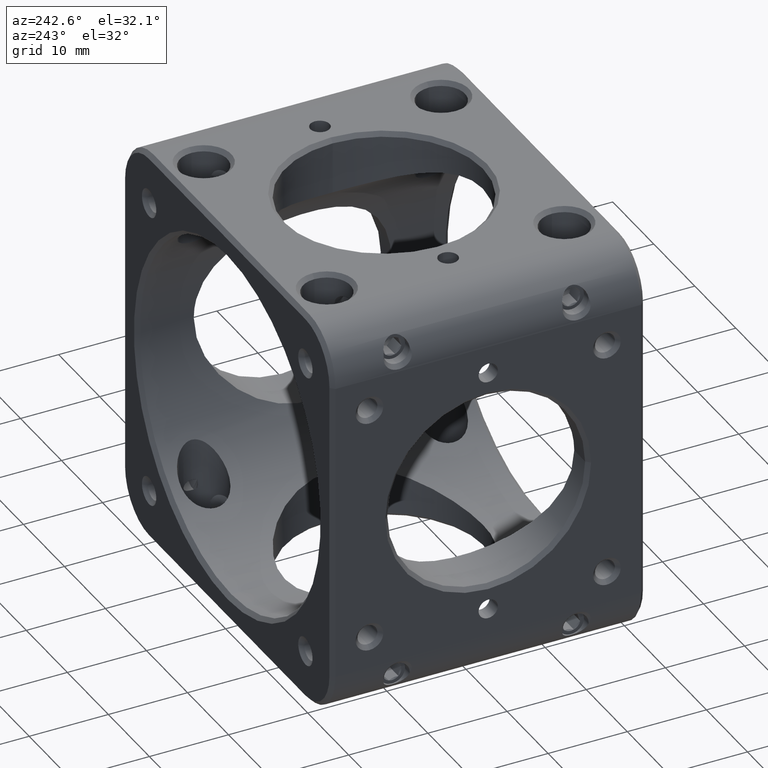
[diagram: clean part render]
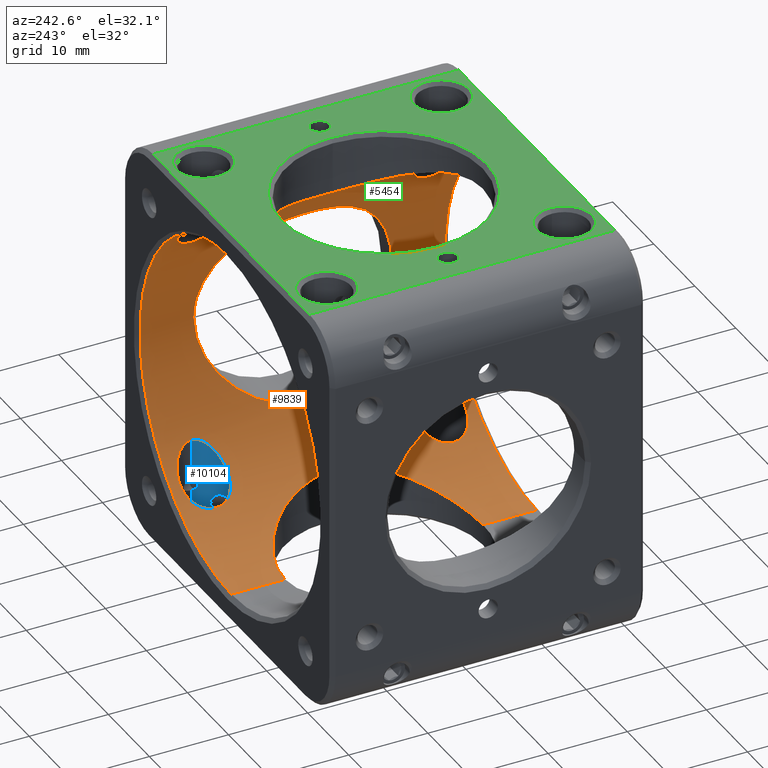
[diagram: same view with three faces highlighted in distinct colors, each labeled with its STEP entity id]
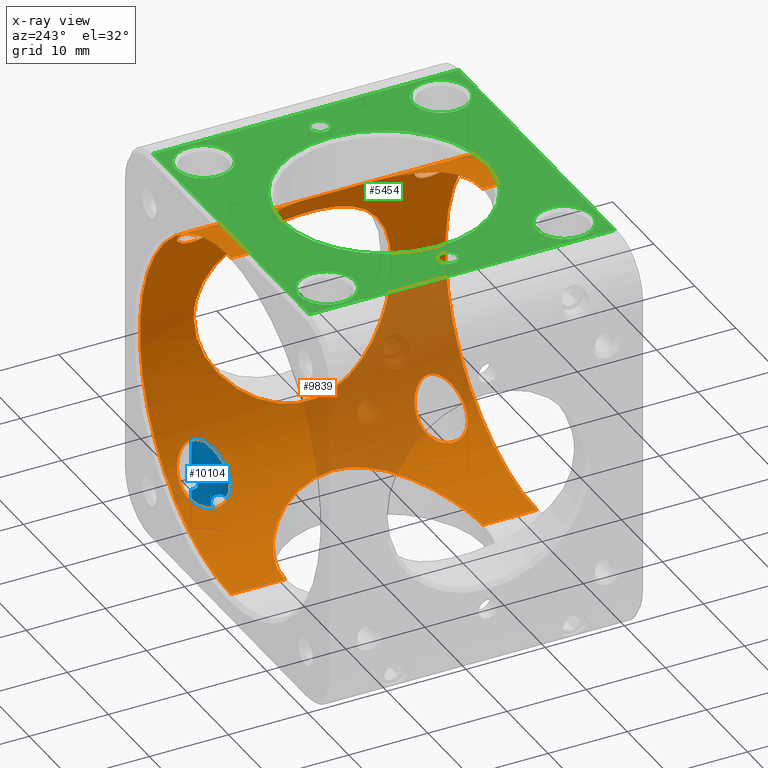
[diagram: x-ray of the same camera — body ghosted, the three highlighted faces saturated]
A machine part, auxiliary view with three faces highlighted in distinct colors.
The next image is the same camera in x-ray (body ghosted, the three faces saturated) — at least one of them is partly hidden behind the body in this view.
Their STEP definitions:

[orange] entity #9839 — the highlighted cylindrical surface (partial cylindrical patch) has radius 22.25 mm, axis along (-0, 1, -0).
#31 = ORIENTED_EDGE ( 'NONE', *, *, #1383, .T. ) ;
#46 = CARTESIAN_POINT ( 'NONE',  ( 22.00938578596963069, 12.06693991451452419, 3.287917584918345515 ) ) ;
#61 = CARTESIAN_POINT ( 'NONE',  ( 22.25000000000001066, 12.49999999999999112, -0.8455739084455267118 ) ) ;
#93 = CARTESIAN_POINT ( 'NONE',  ( 12.13642780318077463, -14.07609975008668535, 18.64869287652257412 ) ) ;
#149 = CARTESIAN_POINT ( 'NONE',  ( 15.53666724150228795, -12.04360588194223958, 15.92883308070270054 ) ) ;
#150 = EDGE_CURVE ( 'NONE', #3687, #15368, #15691, .T. ) ;
#207 = CARTESIAN_POINT ( 'NONE',  ( 16.02454841044219691, 17.82459302486831376, -15.43783134049416894 ) ) ;
#209 = CARTESIAN_POINT ( 'NONE',  ( 13.97236521603011283, -12.17553042421960008, 17.31725922071998625 ) ) ;
#265 = CARTESIAN_POINT ( 'NONE',  ( 11.82088718871328048, -4.084877597104412672, 18.85072683671522853 ) ) ;
#277 = CARTESIAN_POINT ( 'NONE',  ( 16.90427214067167583, 17.32491315768499263, -14.46890294141785027 ) ) ;
#318 = CARTESIAN_POINT ( 'NONE',  ( 2.890096431512590769, -12.16848717508424826, 22.06535320628351471 ) ) ;
#384 = CARTESIAN_POINT ( 'NONE',  ( 17.89321037079412946, 15.80122028593273775, -13.22487931812739070 ) ) ;
#404 = CARTESIAN_POINT ( 'NONE',  ( 22.25000000000000355, 12.49999999999998757, -8.822690060420752160E-16 ) ) ;
#424 = CARTESIAN_POINT ( 'NONE',  ( 11.67893194174866878, -4.474382848355121567, 18.93936467572717319 ) ) ;
#463 = B_SPLINE_CURVE_WITH_KNOTS ( 'NONE', 3,
 ( #16293, #5749, #8198, #6875, #15165, #4372, #10959, #265, #424, #2921, #6936, #2978, #5639, #16514, #9759, #13641, #1657, #4254, #9814, #1825, #11174, #3140, #318, #9703, #13859, #5579 ),
 .UNSPECIFIED., .F., .F.,
 ( 4, 2, 2, 2, 2, 2, 2, 2, 2, 2, 2, 2, 4 ),
 ( 0.03996258009016836338, 0.04120909260186143841, 0.04245560511355452038, 0.04370211762524759541, 0.04494863013694067044, 0.04744165516032682745, 0.04868816767201990248, 0.04993468018371298445, 0.05242770520709914145, 0.05492073023048529845, 0.05616724274217838042, 0.05741375525387145545, 0.05990678027725761245 ),
 .UNSPECIFIED. ) ;
#469 = CARTESIAN_POINT ( 'NONE',  ( 12.54017858982290612, -13.26911826583219423, -18.38026351021477822 ) ) ;
#480 = VERTEX_POINT ( 'NONE', #11948 ) ;
#496 = CARTESIAN_POINT ( 'NONE',  ( 5.621583351875366397, 11.19478055461097554, 21.54210067153769970 ) ) ;
#502 = ORIENTED_EDGE ( 'NONE', *, *, #16999, .T. ) ;
#510 = CARTESIAN_POINT ( 'NONE',  ( 12.00000000000000000, 15.23469973660044907, 18.73666192255174678 ) ) ;
#554 = CARTESIAN_POINT ( 'NONE',  ( 21.34629522557392178, -10.81689262711356392, -6.316014433569827169 ) ) ;
#568 = CARTESIAN_POINT ( 'NONE',  ( 11.99999999999999645, 15.00000000000000000, 18.73666192255173968 ) ) ;
#622 = CARTESIAN_POINT ( 'NONE',  ( 22.24999999999999645, -12.50000000000001421, -0.8452099780393526052 ) ) ;
#638 = CARTESIAN_POINT ( 'NONE',  ( 12.00683985486183936, -15.23403379351054809, 18.73228663270453254 ) ) ;
#703 = CARTESIAN_POINT ( 'NONE',  ( 14.32417033732577316, -17.92864746346734961, 17.02740997605005902 ) ) ;
#732 = CARTESIAN_POINT ( 'NONE',  ( 2.900736755393961364, 12.16583664049228020, 22.06389216685811760 ) ) ;
#782 = CARTESIAN_POINT ( 'NONE',  ( 9.411285489893769451, 8.236386766878313281, 20.16357336417912194 ) ) ;
#807 = CARTESIAN_POINT ( 'NONE',  ( 12.50000000000000000, 1.530808826749756138E-15, -18.40686013419996669 ) ) ;
#813 = DIRECTION ( 'NONE',  ( 0.000000000000000000, 0.000000000000000000, -1.000000000000000000 ) ) ;
#819 = CARTESIAN_POINT ( 'NONE',  ( 12.96531552747259397, -17.21397510523532048, 18.08319616407187880 ) ) ;
#873 = CARTESIAN_POINT ( 'NONE',  ( 4.023096720318525502E-15, -12.50000000000004086, -22.25000000000002842 ) ) ;
#976 = CARTESIAN_POINT ( 'NONE',  ( 12.41723245447075463, -1.658816346200585601, -18.46384447590029509 ) ) ;
#1005 = VERTEX_POINT ( 'NONE', #9316 ) ;
#1025 = CARTESIAN_POINT ( 'NONE',  ( 16.48074098362556938, 12.38538157008750851, 14.94970936717199805 ) ) ;
#1044 = CARTESIAN_POINT ( 'NONE',  ( 0.8438997341431380139, -12.47850697281956833, -22.23790485724858002 ) ) ;
#1084 = CARTESIAN_POINT ( 'NONE',  ( 12.03427807435543073, 14.53280311355972110, 18.71467117047979656 ) ) ;
#1086 = CARTESIAN_POINT ( 'NONE',  ( 12.54007743391545660, 13.26929681737956912, -18.38033027119226404 ) ) ;
#1167 = CARTESIAN_POINT ( 'NONE',  ( 22.06474436925068972, -12.16738104935483555, 2.894244580655393584 ) ) ;
#1196 = CARTESIAN_POINT ( 'NONE',  ( 12.13642659365425658, 14.07572130053103798, 18.64869475915890717 ) ) ;
#1200 = CARTESIAN_POINT ( 'NONE',  ( 14.50013035734589728, 12.01926571541700284, -16.88243306549545508 ) ) ;
#1231 = CARTESIAN_POINT ( 'NONE',  ( 20.16725424238754982, -8.245414502220878461, 9.403427956132999199 ) ) ;
#1258 = CARTESIAN_POINT ( 'NONE',  ( 16.02454841044220046, 12.17540697513167913, 15.43783134049417072 ) ) ;
#1275 = CARTESIAN_POINT ( 'NONE',  ( 11.82088718871328403, 4.084877597104415337, -18.85072683671523919 ) ) ;
#1293 = CARTESIAN_POINT ( 'NONE',  ( 18.62840356937292796, 2.892608156495254157, 12.16777898930009982 ) ) ;
#1327 = CARTESIAN_POINT ( 'NONE',  ( 9.900788855409816236, 7.641045910097646221, -19.92779948914575527 ) ) ;
#1344 = CARTESIAN_POINT ( 'NONE',  ( 18.69587607461166456, 3.297513519390947501, 12.06431602010589721 ) ) ;
#1377 = CARTESIAN_POINT ( 'NONE',  ( 2.890096431512592101, 12.16848717508424293, -22.06535320628351826 ) ) ;
#1383 = EDGE_CURVE ( 'NONE', #6947, #14356, #9430, .T. ) ;
#1394 = CARTESIAN_POINT ( 'NONE',  ( 19.13025341248032163, 5.223573011022278223, 11.36353648270297434 ) ) ;
#1408 = CARTESIAN_POINT ( 'NONE',  ( 21.01031687310263507, 10.13213306518314738, -7.331760803126083914 ) ) ;
#1503 = CARTESIAN_POINT ( 'NONE',  ( 12.96535400288935591, -12.78603533573297035, 18.08316303592163266 ) ) ;
#1556 = CARTESIAN_POINT ( 'NONE',  ( 16.48074098362556583, 17.61461842991248972, -14.94970936717199805 ) ) ;
#1557 = CARTESIAN_POINT ( 'NONE',  ( 13.28302474625889218, -12.53151466558497695, 17.85111882751990109 ) ) ;
#1614 = CARTESIAN_POINT ( 'NONE',  ( 12.81305813277514716, -12.93509375349786161, 18.19108639451824416 ) ) ;
#1645 = CARTESIAN_POINT ( 'NONE',  ( 12.50000000000000000, 1.530808171099058816E-15, 18.40686013419996669 ) ) ;
#1657 = CARTESIAN_POINT ( 'NONE',  ( 7.658878443018930504, -9.912350836557250133, 20.90239389215871668 ) ) ;
#1660 = FACE_BOUND ( 'NONE', #7942, .T. ) ;
#1692 = B_SPLINE_CURVE_WITH_KNOTS ( 'NONE', 3,
 ( #873, #4904, #1044, #3697, #13023, #14343, #15724, #10133, #7630, #4794, #10378, #16829, #15661, #15598, #2251, #2196, #8949, #11734, #13081, #17061, #9011, #14169, #4852, #5027, #7513, #976, #14227, #807 ),
 .UNSPECIFIED., .F., .F.,
 ( 4, 2, 2, 2, 2, 2, 2, 2, 2, 2, 2, 2, 2, 4 ),
 ( 0.01999099915835576835, 0.02123922296659405337, 0.02248744677483233839, 0.02373567058307062688, 0.02498389439130891190, 0.02748034200778547848, 0.02872856581602376003, 0.02997678962426204852, 0.03122501343250033701, 0.03247323724073861856, 0.03496968485721520248, 0.03621790866545349097, 0.03746613247369177946, 0.03996258009016835644 ),
 .UNSPECIFIED. ) ;
#1726 = CARTESIAN_POINT ( 'NONE',  ( 15.36815574926798966, 17.98219858280361549, -16.09150412295706900 ) ) ;
#1776 = CARTESIAN_POINT ( 'NONE',  ( 3.301875676271684767, 12.06314954585413979, 22.00730524892257023 ) ) ;
#1806 = CARTESIAN_POINT ( 'NONE',  ( 15.53532924636155776, -12.04331617418636924, -15.93015453435858042 ) ) ;
#1825 = CARTESIAN_POINT ( 'NONE',  ( 4.470680579377468433, -11.68025731858401706, 21.79961133954334329 ) ) ;
#1834 = CARTESIAN_POINT ( 'NONE',  ( 6.333837761128907395, 10.80690143418373239, 21.34115662821704262 ) ) ;
#1849 = CARTESIAN_POINT ( 'NONE',  ( 18.00000000000001066, 15.23890188229388087, 13.07908635952834331 ) ) ;
#1867 = CARTESIAN_POINT ( 'NONE',  ( 14.32417033732576961, -12.07135253653265572, -17.02740997605006257 ) ) ;
#1903 = ORIENTED_EDGE ( 'NONE', *, *, #10676, .F. ) ;
#1929 = CARTESIAN_POINT ( 'NONE',  ( 16.48074098362556583, -12.38538157008750673, -14.94970936717199805 ) ) ;
#1942 = VERTEX_POINT ( 'NONE', #404 ) ;
#1957 = CARTESIAN_POINT ( 'NONE',  ( 1.298257489860139277E-15, 12.50000000000004086, 22.25000000000002842 ) ) ;
#1966 = CARTESIAN_POINT ( 'NONE',  ( 18.93868441896029609, -4.471354960033757209, -11.68001688522310033 ) ) ;
#2024 = CARTESIAN_POINT ( 'NONE',  ( 17.97195332846639815, 15.46788196829396789, 13.11789250827450992 ) ) ;
#2042 = CARTESIAN_POINT ( 'NONE',  ( 12.54017858982290434, -16.73088173416780222, 18.38026351021477112 ) ) ;
#2045 = CARTESIAN_POINT ( 'NONE',  ( 13.45360814401561989, -12.42199645635158767, -17.72315567610490916 ) ) ;
#2097 = CARTESIAN_POINT ( 'NONE',  ( 14.50325238776628112, -17.96387370118357296, 16.87521760235069834 ) ) ;
#2163 = CARTESIAN_POINT ( 'NONE',  ( 17.16535919428266155, -17.08391413625483324, -14.15817818094912894 ) ) ;
#2180 = CARTESIAN_POINT ( 'NONE',  ( 11.82420066886097487, 4.075363869825794794, 18.84864792839993441 ) ) ;
#2196 = CARTESIAN_POINT ( 'NONE',  ( 9.143696518062265355, -8.532410958154818204, -20.28668120055487023 ) ) ;
#2234 = CARTESIAN_POINT ( 'NONE',  ( 13.79730872138524411, 12.24471548666278764, -17.45694272658897006 ) ) ;
#2251 = CARTESIAN_POINT ( 'NONE',  ( 8.580888346591644122, -9.098218394641451212, -20.53107340912058021 ) ) ;
#2252 = LINE ( 'NONE', #3791, #16084 ) ;
#2344 = CARTESIAN_POINT ( 'NONE',  ( 17.16535919428265089, 12.91608586374516854, -14.15817818094912539 ) ) ;
#2366 = ORIENTED_EDGE ( 'NONE', *, *, #7269, .T. ) ;
#2403 = CARTESIAN_POINT ( 'NONE',  ( 17.97093921907346470, 14.52671262259110208, 13.11927913394939260 ) ) ;
#2443 = ORIENTED_EDGE ( 'NONE', *, *, #10119, .F. ) ;
#2461 = CARTESIAN_POINT ( 'NONE',  ( 14.85509026275186706, 11.99828271236644994, 16.56633913196967356 ) ) ;
#2518 = CARTESIAN_POINT ( 'NONE',  ( 16.76627252856335915, 12.56913497917533284, 14.62876409783845055 ) ) ;
#2560 = CARTESIAN_POINT ( 'NONE',  ( 17.61590943906191953, 13.51720264526005622, 13.59277468045049808 ) ) ;
#2588 = EDGE_CURVE ( 'NONE', #15368, #3687, #11764, .T. ) ;
#2600 = CARTESIAN_POINT ( 'NONE',  ( 19.56881914267490785, 6.650100829037834060, 10.59191144516633543 ) ) ;
#2635 = CARTESIAN_POINT ( 'NONE',  ( 10.81781490710683080, 6.314507503669430477, -19.44982504098119946 ) ) ;
#2659 = CARTESIAN_POINT ( 'NONE',  ( 18.93913212333950469, 4.473236519688631674, 11.67929070766396116 ) ) ;
#2710 = CARTESIAN_POINT ( 'NONE',  ( 12.00683985486184824, 15.23403379351054809, -18.73228663270453254 ) ) ;
#2742 = CARTESIAN_POINT ( 'NONE',  ( 20.89386683027341007, 9.889007279706053311, -7.656268872023922256 ) ) ;
#2781 = CARTESIAN_POINT ( 'NONE',  ( 11.99999999999999467, -15.00000000000000000, -18.73666192255173968 ) ) ;
#2831 = CARTESIAN_POINT ( 'NONE',  ( 22.25000000000002132, 12.49999999999998757, 0.4221286320467141917 ) ) ;
#2853 = VERTEX_POINT ( 'NONE', #13197 ) ;
#2921 = CARTESIAN_POINT ( 'NONE',  ( 11.20230909650959994, -5.606111272608266027, 19.22781093590678125 ) ) ;
#2932 = CARTESIAN_POINT ( 'NONE',  ( 16.48910451725278392, -12.37400261209756813, 14.94574146939930870 ) ) ;
#2978 = CARTESIAN_POINT ( 'NONE',  ( 10.14327631558842135, -7.316144932968665415, 19.80507571199674999 ) ) ;
#2988 = CARTESIAN_POINT ( 'NONE',  ( 12.05512099201689402, 15.58418624624010995, -18.70127267163102758 ) ) ;
#3015 = CARTESIAN_POINT ( 'NONE',  ( 11.99999999999999467, -15.00000000000000000, 18.73666192255173968 ) ) ;
#3125 = CARTESIAN_POINT ( 'NONE',  ( 17.51190353096244223, -13.34909865482063118, -13.72691963934107306 ) ) ;
#3131 = EDGE_CURVE ( 'NONE', #14679, #9057, #6203, .T. ) ;
#3140 = CARTESIAN_POINT ( 'NONE',  ( 3.297540644542383603, -12.06427121450884066, 22.00792306967559497 ) ) ;
#3158 = CARTESIAN_POINT ( 'NONE',  ( 12.13642780318077818, 15.92390024991331288, 18.64869287652257057 ) ) ;
#3176 = CARTESIAN_POINT ( 'NONE',  ( 15.86398361088839337, -12.12213812562968229, -15.60289403523803564 ) ) ;
#3216 = CARTESIAN_POINT ( 'NONE',  ( 16.48910451725278037, 17.62599738790242654, 14.94574146939930515 ) ) ;
#3282 = CARTESIAN_POINT ( 'NONE',  ( 17.51304996377384526, 16.64913095030639312, 13.72545206880823798 ) ) ;
#3295 = CARTESIAN_POINT ( 'NONE',  ( 14.50325238776627579, -12.03612629881643592, -16.87521760235069479 ) ) ;
#3303 = CARTESIAN_POINT ( 'NONE',  ( 13.28302474625889396, -17.46848533441503193, -17.85111882751990109 ) ) ;
#3320 = CARTESIAN_POINT ( 'NONE',  ( 0.8438997341431383470, 12.47850697281956656, 22.23790485724857291 ) ) ;
#3333 = CARTESIAN_POINT ( 'NONE',  ( 18.85231382512018072, 4.092416348424865902, -11.81836946140424693 ) ) ;
#3340 = CARTESIAN_POINT ( 'NONE',  ( 17.86785717066527113, 15.90929388621109908, 13.25933220143173052 ) ) ;
#3351 = CARTESIAN_POINT ( 'NONE',  ( 13.45360814401562166, -17.57800354364842121, 17.72315567610490916 ) ) ;
#3354 = CARTESIAN_POINT ( 'NONE',  ( 13.28380325814545060, -12.53093227865380932, -17.85054512428430940 ) ) ;
#3389 = CARTESIAN_POINT ( 'NONE',  ( 20.90517288428287301, -9.918018933784079394, -7.650497033570218264 ) ) ;
#3405 = CARTESIAN_POINT ( 'NONE',  ( 14.85509026275186528, -18.00171728763355361, 16.56633913196967001 ) ) ;
#3415 = CARTESIAN_POINT ( 'NONE',  ( 17.28851047329310475, -16.94878752697927382, -14.00722524776503342 ) ) ;
#3462 = CARTESIAN_POINT ( 'NONE',  ( 13.97202009206200479, -17.82435461780207220, 17.31754026679967495 ) ) ;
#3548 = VERTEX_POINT ( 'NONE', #5956 ) ;
#3556 = CARTESIAN_POINT ( 'NONE',  ( 12.41945196833725085, 13.45326829858303874, -18.46170737829060116 ) ) ;
#3588 = EDGE_CURVE ( 'NONE', #14356, #6867, #11753, .T. ) ;
#3672 = CARTESIAN_POINT ( 'NONE',  ( 16.02488476547149432, 12.17547617222765766, -15.43749922157444665 ) ) ;
#3687 = VERTEX_POINT ( 'NONE', #11630 ) ;
#3697 = CARTESIAN_POINT ( 'NONE',  ( 1.677015684497078052, -12.39406799343718824, -22.19063310487733176 ) ) ;
#3754 = CARTESIAN_POINT ( 'NONE',  ( 18.00000000000000355, -14.76109811770611380, 13.07908635952833798 ) ) ;
#3791 = CARTESIAN_POINT ( 'NONE',  ( 1.603218562179924332E-15, -19.80000000000001137, -22.25000000000000355 ) ) ;
#3793 = CARTESIAN_POINT ( 'NONE',  ( 15.36983058559304638, 12.01799609994540852, -16.08990892526088601 ) ) ;
#3843 = CARTESIAN_POINT ( 'NONE',  ( 17.89321037079413301, 14.19877971406725514, 13.22487931812738893 ) ) ;
#3873 = CARTESIAN_POINT ( 'NONE',  ( 18.62856065662482408, -2.893518738398923595, 12.16753759616078234 ) ) ;
#3900 = CARTESIAN_POINT ( 'NONE',  ( 13.28380325814545060, 12.53093227865380044, 17.85054512428430229 ) ) ;
#3921 = VERTEX_POINT ( 'NONE', #5349 ) ;
#3925 = CARTESIAN_POINT ( 'NONE',  ( 11.99999999999999645, 15.00000000000000000, -18.73666192255173968 ) ) ;
#3935 = CARTESIAN_POINT ( 'NONE',  ( 20.29052947789150352, -8.541545788600243938, 9.135159538274026048 ) ) ;
#3937 = ORIENTED_EDGE ( 'NONE', *, *, #7929, .F. ) ;
#3976 = CARTESIAN_POINT ( 'NONE',  ( 11.20230909650960172, 5.606111272608266027, -19.22781093590677415 ) ) ;
#3986 = CARTESIAN_POINT ( 'NONE',  ( 1.603218633088722059E-15, 12.50000000000000000, -22.25000000000000355 ) ) ;
#4029 = CARTESIAN_POINT ( 'NONE',  ( 12.33141585388614381, 2.087457798156515665, -18.52048756524376572 ) ) ;
#4064 = CARTESIAN_POINT ( 'NONE',  ( 21.54501550292216905, 11.20035146952881178, -5.610027267616120916 ) ) ;
#4106 = CARTESIAN_POINT ( 'NONE',  ( 22.23793507089736821, 12.47855978235304342, 0.8417303248106006164 ) ) ;
#4119 = CARTESIAN_POINT ( 'NONE',  ( 21.34462449887935165, 10.81375588626571194, -6.322343816306380759 ) ) ;
#4209 = CARTESIAN_POINT ( 'NONE',  ( 17.78893192294690095, 16.11059177727373992, -13.36488132875868118 ) ) ;
#4254 = CARTESIAN_POINT ( 'NONE',  ( 6.308110052201121754, -10.82223940232595361, 21.34891652981980315 ) ) ;
#4326 = CARTESIAN_POINT ( 'NONE',  ( 15.53532924636156132, 17.95668382581363431, -15.93015453435857687 ) ) ;
#4372 = CARTESIAN_POINT ( 'NONE',  ( 12.16632568391497493, -2.898588686493767330, 18.62935307434839416 ) ) ;
#4385 = CARTESIAN_POINT ( 'NONE',  ( 15.02803581967370228, 18.00470648080809610, -16.40959644462676081 ) ) ;
#4443 = EDGE_LOOP ( 'NONE', ( #8399, #17160 ) ) ;
#4452 = CARTESIAN_POINT ( 'NONE',  ( 12.02855417009923222, 15.47344173680746060, 18.71845373960337255 ) ) ;
#4463 = CARTESIAN_POINT ( 'NONE',  ( 18.00000000000000355, 15.00000000000000000, 13.07908635952832910 ) ) ;
#4488 = CARTESIAN_POINT ( 'NONE',  ( 7.666294888837118293, 9.881279947827305676, 20.89020035121416541 ) ) ;
#4506 = ORIENTED_EDGE ( 'NONE', *, *, #14576, .F. ) ;
#4509 = CARTESIAN_POINT ( 'NONE',  ( 12.41945196833725085, 16.54673170141695238, 18.46170737829059760 ) ) ;
#4584 = CARTESIAN_POINT ( 'NONE',  ( 17.86126683382208213, -14.09186593927435105, -13.26805558407292018 ) ) ;
#4595 = CARTESIAN_POINT ( 'NONE',  ( 18.00000000000000355, -15.00000000000000000, -13.07908635952833087 ) ) ;
#4636 = CARTESIAN_POINT ( 'NONE',  ( 15.02803581967370050, -18.00470648080809610, 16.40959644462676081 ) ) ;
#4646 = CARTESIAN_POINT ( 'NONE',  ( 12.41945196833725262, -16.54673170141695593, -18.46170737829060826 ) ) ;
#4672 = CARTESIAN_POINT ( 'NONE',  ( 18.69522194738532050, -3.293882370118375036, -12.06533115520815258 ) ) ;
#4682 = EDGE_CURVE ( 'NONE', #480, #5224, #2252, .T. ) ;
#4691 = CARTESIAN_POINT ( 'NONE',  ( 17.74847186612224448, -16.20678082031646738, 13.41862767339299722 ) ) ;
#4745 = DIRECTION ( 'NONE',  ( 0.000000000000000000, 1.000000000000000000, 0.000000000000000000 ) ) ;
#4748 = CARTESIAN_POINT ( 'NONE',  ( 18.00000000000000355, -15.23851790035992337, 13.07908635952834153 ) ) ;
#4759 = CYLINDRICAL_SURFACE ( 'NONE', #6093, 22.25000000000000355 ) ;
#4761 = CARTESIAN_POINT ( 'NONE',  ( 13.45059935050027988, -17.57631843692151463, -17.72546062659423072 ) ) ;
#4773 = CARTESIAN_POINT ( 'NONE',  ( 9.919170357862514109, 7.617113689422969180, 19.91863561584025533 ) ) ;
#4794 = CARTESIAN_POINT ( 'NONE',  ( 5.621583351875369061, -11.19478055461097732, -21.54210067153770680 ) ) ;
#4805 = CARTESIAN_POINT ( 'NONE',  ( 16.76627252856336270, -17.43086502082466538, 14.62876409783845766 ) ) ;
#4816 = CARTESIAN_POINT ( 'NONE',  ( 17.97195332846639815, -15.46788196829396966, -13.11789250827451347 ) ) ;
#4852 = CARTESIAN_POINT ( 'NONE',  ( 11.82420066886097842, -4.075363869825796570, -18.84864792839993797 ) ) ;
#4904 = CARTESIAN_POINT ( 'NONE',  ( 0.4194196110605769579, -12.50000000000000178, -22.25000000000000711 ) ) ;
#4932 = LINE ( 'NONE', #7453, #7827 ) ;
#4945 = CARTESIAN_POINT ( 'NONE',  ( 17.97195332846639815, 14.53211803170603211, -13.11789250827451170 ) ) ;
#5027 = CARTESIAN_POINT ( 'NONE',  ( 12.06725622740666459, -3.286584742721383456, -18.69397168416552901 ) ) ;
#5125 = CARTESIAN_POINT ( 'NONE',  ( 13.45059935050028344, 12.42368156307849425, -17.72546062659423072 ) ) ;
#5182 = CARTESIAN_POINT ( 'NONE',  ( 1.298257489860139277E-15, 12.50000000000004086, 22.25000000000002842 ) ) ;
#5198 = CARTESIAN_POINT ( 'NONE',  ( 11.67893194174867055, 4.474382848355122455, -18.93936467572716964 ) ) ;
#5211 = CARTESIAN_POINT ( 'NONE',  ( 22.25000000000001066, -12.50000000000001421, 0.4219469501819085866 ) ) ;
#5224 = VERTEX_POINT ( 'NONE', #13108 ) ;
#5246 = CARTESIAN_POINT ( 'NONE',  ( 12.39430684265950333, 1.675703529498631994, -18.47826452483299420 ) ) ;
#5265 = CARTESIAN_POINT ( 'NONE',  ( 21.01575273697969592, 10.14335316892038463, 7.315999711633385694 ) ) ;
#5293 = CARTESIAN_POINT ( 'NONE',  ( 11.99999999999999645, 15.00000000000000000, -18.73666192255173968 ) ) ;
#5303 = CARTESIAN_POINT ( 'NONE',  ( 9.390025331543036202, 8.260667456846768175, -20.17350333263871320 ) ) ;
#5318 = CARTESIAN_POINT ( 'NONE',  ( 22.00817554844031321, -12.06474003005866713, 3.296284134886583228 ) ) ;
#5332 = CARTESIAN_POINT ( 'NONE',  ( 22.20199722148921495, 12.41511158868248721, -1.673772449028594567 ) ) ;
#5349 = CARTESIAN_POINT ( 'NONE',  ( 1.633834732158606935E-15, -19.30000000000003268, 22.25000000000000355 ) ) ;
#5369 = CARTESIAN_POINT ( 'NONE',  ( 17.16535919428265800, -12.91608586374517031, 14.15817818094913072 ) ) ;
#5380 = CARTESIAN_POINT ( 'NONE',  ( 21.34374647782650669, -10.81205376148166764, 6.325412407067627640 ) ) ;
#5396 = CARTESIAN_POINT ( 'NONE',  ( 20.29151615237087825, 8.543885851942704335, -9.132968060980086733 ) ) ;
#5426 = VECTOR ( 'NONE', #8013, 1000.000000000000000 ) ;
#5530 = CARTESIAN_POINT ( 'NONE',  ( 17.16501362079874227, 17.08427195880744520, -14.15859725862178564 ) ) ;
#5579 = CARTESIAN_POINT ( 'NONE',  ( -1.121620495014961714E-15, -12.50000000000000000, 22.25000000000000355 ) ) ;
#5596 = FACE_BOUND ( 'NONE', #5814, .T. ) ;
#5602 = EDGE_CURVE ( 'NONE', #1005, #1942, #15257, .T. ) ;
#5639 = CARTESIAN_POINT ( 'NONE',  ( 9.900788855409816236, -7.641045910097650662, 19.92779948914575883 ) ) ;
#5646 = CARTESIAN_POINT ( 'NONE',  ( 13.28380325814544705, 17.46906772134619956, -17.85054512428430584 ) ) ;
#5658 = VERTEX_POINT ( 'NONE', #2781 ) ;
#5705 = CARTESIAN_POINT ( 'NONE',  ( 15.86398361088838982, 17.87786187437031415, -15.60289403523802854 ) ) ;
#5749 = CARTESIAN_POINT ( 'NONE',  ( 12.50000000000000178, -0.4167980451355773330, 18.40686013419996669 ) ) ;
#5799 = CARTESIAN_POINT ( 'NONE',  ( 16.76627252856335915, -12.56913497917533640, -14.62876409783845943 ) ) ;
#5814 = EDGE_LOOP ( 'NONE', ( #502, #8477 ) ) ;
#5830 = CARTESIAN_POINT ( 'NONE',  ( 17.61595384444603951, 16.48299307728012408, 13.59273050874436706 ) ) ;
#5847 = CARTESIAN_POINT ( 'NONE',  ( 16.33244724828434968, -12.30693306209929538, -15.11171582376264766 ) ) ;
#5879 = CARTESIAN_POINT ( 'NONE',  ( 18.93994921486636684, 4.476568174186580151, -11.67795426536478587 ) ) ;
#5915 = CARTESIAN_POINT ( 'NONE',  ( 15.86369951860140759, -17.87789872145562242, -15.60316602070183123 ) ) ;
#5939 = CARTESIAN_POINT ( 'NONE',  ( 18.46570843999078448, 1.678625124995345663, -12.41447775011778276 ) ) ;
#5956 = CARTESIAN_POINT ( 'NONE',  ( -1.121620495014961714E-15, -12.50000000000000000, 22.25000000000000355 ) ) ;
#5986 = CARTESIAN_POINT ( 'NONE',  ( 1.603218562179924332E-15, 19.29999999999995453, -22.25000000000000355 ) ) ;
#5999 = CARTESIAN_POINT ( 'NONE',  ( 18.85093667538365736, -4.086092380931180656, -11.82056369246024019 ) ) ;
#6018 = CARTESIAN_POINT ( 'NONE',  ( 12.13642659365425303, -15.92427869946896202, 18.64869475915890717 ) ) ;
#6023 = CARTESIAN_POINT ( 'NONE',  ( 15.02803581967370405, -11.99529351919190567, -16.40959644462676792 ) ) ;
#6032 = CARTESIAN_POINT ( 'NONE',  ( 16.77427403664834316, -17.44496746666782983, -14.62362790939434198 ) ) ;
#6072 = CARTESIAN_POINT ( 'NONE',  ( 16.02454841044218625, -17.82459302486832087, 15.43783134049417249 ) ) ;
#6093 = AXIS2_PLACEMENT_3D ( 'NONE', #15590, #10246, #17282 ) ;
#6125 = CARTESIAN_POINT ( 'NONE',  ( 17.16501362079874582, -17.08427195880744875, 14.15859725862178564 ) ) ;
#6159 = VECTOR ( 'NONE', #12779, 1000.000000000000000 ) ;
#6203 = B_SPLINE_CURVE_WITH_KNOTS ( 'NONE', 3,
 ( #14456, #15705, #17223, #1084, #10482, #1196, #10541, #15876, #8996, #7662, #11826, #3900, #11946, #9222, #7781, #9161, #15931, #2461, #11713, #13063, #10357, #9049, #1258, #13292, #1025, #2518, #11884, #10593, #14392, #7732, #2560, #10416, #6336, #14566, #3843, #2403, #17167, #17102 ),
 .UNSPECIFIED., .F., .F.,
 ( 4, 2, 2, 2, 2, 2, 2, 2, 2, 2, 2, 2, 2, 2, 2, 2, 2, 2, 4 ),
 ( 0.01122873345832147741, 0.01157906738810051891, 0.01192940131787955868, 0.01263006917743764515, 0.01333073703699573162, 0.01403140489655381982, 0.01473207275611190629, 0.01543274061566999276, 0.01613340847522808097, 0.01683407633478616744, 0.01753474419434425391, 0.01823541205390234038, 0.01893607991346042685, 0.01963674777301851332, 0.02033741563257659979, 0.02103808349213468626, 0.02138841742191372602, 0.02173875135169276926, 0.02243941921125085226 ),
 .UNSPECIFIED. ) ;
#6212 = CARTESIAN_POINT ( 'NONE',  ( 12.50000000000000000, 1.530808171099058816E-15, 18.40686013419996669 ) ) ;
#6242 = ORIENTED_EDGE ( 'NONE', *, *, #12446, .T. ) ;
#6253 = EDGE_CURVE ( 'NONE', #3921, #3548, #7010, .T. ) ;
#6273 = CARTESIAN_POINT ( 'NONE',  ( 10.83448286953775863, 6.286151851323608319, 19.44053956100353986 ) ) ;
#6336 = CARTESIAN_POINT ( 'NONE',  ( 17.78893192294690095, 13.88940822272626185, 13.36488132875868118 ) ) ;
#6338 = CARTESIAN_POINT ( 'NONE',  ( 15.86369951860140759, 12.12210127854438291, -15.60316602070182768 ) ) ;
#6420 = ORIENTED_EDGE ( 'NONE', *, *, #8042, .T. ) ;
#6433 = CARTESIAN_POINT ( 'NONE',  ( 21.79758380499348647, -11.67648734070231065, 4.480768488269480265 ) ) ;
#6464 = CARTESIAN_POINT ( 'NONE',  ( 13.28302474625889751, 12.53151466558497695, -17.85111882751990109 ) ) ;
#6537 = CARTESIAN_POINT ( 'NONE',  ( 5.595348458008329473, 11.20730382911505707, -21.54865966192193838 ) ) ;
#6555 = CARTESIAN_POINT ( 'NONE',  ( 18.42147014796824678, -0.8422172417718930548, 12.47856138183806252 ) ) ;
#6618 = CARTESIAN_POINT ( 'NONE',  ( 19.79904712040614712, -7.299784578086959463, 10.15500626109256643 ) ) ;
#6652 = CARTESIAN_POINT ( 'NONE',  ( 1.603218633088722059E-15, 12.50000000000000000, -22.25000000000000355 ) ) ;
#6669 = CARTESIAN_POINT ( 'NONE',  ( 18.69538979208273233, -3.294921907902892411, 12.06507532646429226 ) ) ;
#6720 = CARTESIAN_POINT ( 'NONE',  ( 11.99999999999999467, -14.76530026339955093, 18.73666192255173613 ) ) ;
#6747 = CARTESIAN_POINT ( 'NONE',  ( 19.92288915077105926, 7.628235979001725120, -9.910648341210356094 ) ) ;
#6771 = CARTESIAN_POINT ( 'NONE',  ( 16.77427403664833960, -12.55503253333216307, 14.62362790939434376 ) ) ;
#6867 = VERTEX_POINT ( 'NONE', #5986 ) ;
#6875 = CARTESIAN_POINT ( 'NONE',  ( 12.39430684265950156, -1.675703529498629774, 18.47826452483299420 ) ) ;
#6887 = CARTESIAN_POINT ( 'NONE',  ( 17.97093921907346470, 15.47328737740889437, -13.11927913394939615 ) ) ;
#6936 = CARTESIAN_POINT ( 'NONE',  ( 10.81781490710683613, -6.314507503669423372, 19.44982504098119591 ) ) ;
#6944 = CARTESIAN_POINT ( 'NONE',  ( 13.97202009206199946, 17.82435461780207220, -17.31754026679967851 ) ) ;
#6947 = VERTEX_POINT ( 'NONE', #5182 ) ;
#6990 = CARTESIAN_POINT ( 'NONE',  ( 17.74847186612226579, 16.20678082031646738, -13.41862767339299722 ) ) ;
#7010 = LINE ( 'NONE', #12724, #6159 ) ;
#7136 = CARTESIAN_POINT ( 'NONE',  ( 12.05512099201689402, -14.41581375375988827, -18.70127267163102402 ) ) ;
#7171 = CARTESIAN_POINT ( 'NONE',  ( 19.44588786361204669, 6.302326704385588840, -10.82481071991195343 ) ) ;
#7192 = CARTESIAN_POINT ( 'NONE',  ( 17.89321037079412946, -14.19877971406725337, -13.22487931812738537 ) ) ;
#7211 = VERTEX_POINT ( 'NONE', #14987 ) ;
#7228 = CARTESIAN_POINT ( 'NONE',  ( 20.66139247236392862, -9.398980201094909503, -8.279406649127885487 ) ) ;
#7260 = CARTESIAN_POINT ( 'NONE',  ( 16.48910451725278037, -17.62599738790242654, -14.94574146939930337 ) ) ;
#7269 = EDGE_CURVE ( 'NONE', #5658, #7211, #8124, .T. ) ;
#7307 = CARTESIAN_POINT ( 'NONE',  ( 12.03427807435543251, -14.53280311355972643, -18.71467117047980366 ) ) ;
#7314 = CARTESIAN_POINT ( 'NONE',  ( 12.54007743391545127, -16.73070318262043443, -18.38033027119226404 ) ) ;
#7333 = CARTESIAN_POINT ( 'NONE',  ( 18.62909504268264627, 2.897008049554321119, -12.16672118487253584 ) ) ;
#7341 = CARTESIAN_POINT ( 'NONE',  ( 12.81305813277514716, 17.06490624650213661, 18.19108639451824772 ) ) ;
#7359 = CARTESIAN_POINT ( 'NONE',  ( 12.81356576301664951, -17.06547289379173193, 18.19073110697954476 ) ) ;
#7362 = CARTESIAN_POINT ( 'NONE',  ( 15.36815574926799144, -12.01780141719638273, -16.09150412295707611 ) ) ;
#7369 = CARTESIAN_POINT ( 'NONE',  ( 12.96535400288935413, -17.21396466426703853, -18.08316303592163266 ) ) ;
#7388 = CARTESIAN_POINT ( 'NONE',  ( 20.17182393924040440, -8.267416220272805205, -9.409528804513382028 ) ) ;
#7391 = VERTEX_POINT ( 'NONE', #16966 ) ;
#7410 = ORIENTED_EDGE ( 'NONE', *, *, #9207, .T. ) ;
#7412 = DIRECTION ( 'NONE',  ( 0.000000000000000000, 0.000000000000000000, 1.000000000000000000 ) ) ;
#7453 = CARTESIAN_POINT ( 'NONE',  ( 1.603218562179924332E-15, -19.80000000000001137, -22.25000000000000355 ) ) ;
#7467 = CARTESIAN_POINT ( 'NONE',  ( 16.90427214067167583, -17.32491315768499263, 14.46890294141785027 ) ) ;
#7513 = CARTESIAN_POINT ( 'NONE',  ( 12.17087692973057855, -2.879598606758932533, -18.62637735648026549 ) ) ;
#7521 = CARTESIAN_POINT ( 'NONE',  ( 13.79754853397105485, -17.75527503439555943, 17.45673147140912462 ) ) ;
#7558 = EDGE_LOOP ( 'NONE', ( #13855, #7410, #8316, #2443, #7624, #31, #13589, #9402, #4506, #3937 ) ) ;
#7575 = B_SPLINE_CURVE_WITH_KNOTS ( 'NONE', 3,
 ( #10072, #1849, #2024, #3340, #9951, #5830, #3282, #12659, #14050, #15187, #3216, #15418, #15245, #11191, #12722, #16591, #16535, #8526, #9841, #12477, #12605, #15313, #7341, #16773, #4509, #8706, #3158, #4452, #510, #568 ),
 .UNSPECIFIED., .F., .F.,
 ( 4, 2, 2, 2, 2, 2, 2, 2, 2, 2, 2, 2, 2, 2, 4 ),
 ( 1.734723475976807094E-18, 0.0007017958411450956994, 0.001403591682290194652, 0.002105387523435293604, 0.002807183364580392339, 0.004210775046870580268, 0.004912570888015676401, 0.005614366729160768198, 0.007017958411450952658, 0.007719754252596040117, 0.008421550093741127577, 0.009123345934886215036, 0.009825141776031302496, 0.01052693761717639169, 0.01122873345832147741 ),
 .UNSPECIFIED. ) ;
#7624 = ORIENTED_EDGE ( 'NONE', *, *, #13375, .F. ) ;
#7630 = CARTESIAN_POINT ( 'NONE',  ( 4.486097904073628406, -11.67449156739002625, -21.79651063304063285 ) ) ;
#7662 = CARTESIAN_POINT ( 'NONE',  ( 12.81356576301665662, 12.93452710620825918, 18.19073110697954121 ) ) ;
#7666 = CARTESIAN_POINT ( 'NONE',  ( 17.51304996377384526, 13.35086904969360155, -13.72545206880824331 ) ) ;
#7732 = CARTESIAN_POINT ( 'NONE',  ( 17.51190353096243868, 13.34909865482063118, 13.72691963934106596 ) ) ;
#7758 = CARTESIAN_POINT ( 'NONE',  ( 18.51987136792725508, -2.082021622483112289, 12.33233991612964964 ) ) ;
#7776 = CARTESIAN_POINT ( 'NONE',  ( -1.121620565922936265E-15, -19.80000000000001137, 22.25000000000000355 ) ) ;
#7781 = CARTESIAN_POINT ( 'NONE',  ( 13.97202009206200835, 12.17564538219792603, 17.31754026679967140 ) ) ;
#7783 = CARTESIAN_POINT ( 'NONE',  ( 16.48910451725278747, 12.37400261209757169, -14.94574146939930515 ) ) ;
#7791 = CARTESIAN_POINT ( 'NONE',  ( 3.297540644542384047, 12.06427121450883710, -22.00792306967558787 ) ) ;
#7811 = CARTESIAN_POINT ( 'NONE',  ( 20.65696236243341133, -9.389210078876342180, 8.290314293717701233 ) ) ;
#7827 = VECTOR ( 'NONE', #11475, 1000.000000000000000 ) ;
#7841 = EDGE_LOOP ( 'NONE', ( #1903, #11557 ) ) ;
#7871 = CARTESIAN_POINT ( 'NONE',  ( 18.46518305003755955, 1.673181008074829057, 12.41525574573963908 ) ) ;
#7929 = EDGE_CURVE ( 'NONE', #5224, #7391, #1692, .T. ) ;
#7939 = CARTESIAN_POINT ( 'NONE',  ( 22.25000000000000355, -12.50000000000001421, 1.530808515118144139E-15 ) ) ;
#7942 = EDGE_LOOP ( 'NONE', ( #6420, #12080 ) ) ;
#7992 = CARTESIAN_POINT ( 'NONE',  ( 21.87654358438746272, 11.82290723233783503, 4.079253059231898959 ) ) ;
#8005 = CARTESIAN_POINT ( 'NONE',  ( 22.06506254128812117, 12.16795745945318075, -2.891788159180891604 ) ) ;
#8013 = DIRECTION ( 'NONE',  ( -0.000000000000000000, 1.000000000000000000, -0.000000000000000000 ) ) ;
#8026 = CARTESIAN_POINT ( 'NONE',  ( 1.660984972589431674, 12.41732978443265267, -22.20323190273849434 ) ) ;
#8040 = CARTESIAN_POINT ( 'NONE',  ( 15.36983058559304105, -12.01799609994540496, 16.08990892526088601 ) ) ;
#8042 = EDGE_CURVE ( 'NONE', #16266, #2853, #16272, .T. ) ;
#8091 = AXIS2_PLACEMENT_3D ( 'NONE', #15549, #16840, #7412 ) ;
#8099 = CARTESIAN_POINT ( 'NONE',  ( 13.79730872138524589, -12.24471548666278586, 17.45694272658897006 ) ) ;
#8124 = B_SPLINE_CURVE_WITH_KNOTS ( 'NONE', 3,
 ( #14067, #11326, #12738, #7307, #7136, #13897, #9860, #12501, #469, #11206, #8607, #3354, #2045, #9805, #16731, #1867, #3295, #12622, #6023, #7362, #1806, #3176, #16787, #5847, #1929, #5799, #9970, #13955, #11162, #3125, #15204, #12680, #15265, #4584, #7192, #16612, #8548, #9914 ),
 .UNSPECIFIED., .F., .F.,
 ( 4, 2, 2, 2, 2, 2, 2, 2, 2, 2, 2, 2, 2, 2, 2, 2, 2, 2, 4 ),
 ( 0.01122873345832151211, 0.01157906738810055708, 0.01192940131787960031, 0.01263006917743768852, 0.01333073703699577672, 0.01403140489655386493, 0.01473207275611195313, 0.01543274061567004307, 0.01613340847522812954, 0.01683407633478621948, 0.01753474419434430595, 0.01823541205390239242, 0.01893607991346047542, 0.01963674777301856189, 0.02033741563257664489, 0.02103808349213472789, 0.02138841742191377460, 0.02173875135169282130, 0.02243941921125090083 ),
 .UNSPECIFIED. ) ;
#8151 = CARTESIAN_POINT ( 'NONE',  ( 16.33244724828435324, 17.69306693790069929, -15.11171582376264411 ) ) ;
#8152 = CARTESIAN_POINT ( 'NONE',  ( 15.86369951860141647, -12.12210127854438113, 15.60316602070183478 ) ) ;
#8198 = CARTESIAN_POINT ( 'NONE',  ( 12.47890108730010184, -0.8389589275708166927, 18.42124126146438812 ) ) ;
#8316 = ORIENTED_EDGE ( 'NONE', *, *, #6253, .T. ) ;
#8338 = CARTESIAN_POINT ( 'NONE',  ( 12.96531552747258864, 17.21397510523531338, -18.08319616407188235 ) ) ;
#8341 = CIRCLE ( 'NONE', #8091, 22.25000000000000355 ) ;
#8363 = B_SPLINE_CURVE_WITH_KNOTS ( 'NONE', 3,
 ( #3015, #16607, #638, #10210, #16963, #6018, #10028, #15490, #2042, #7359, #819, #15378, #3351, #7521, #3462, #703, #2097, #3405, #4636, #10085, #10141, #8656, #6072, #16784, #11381, #4805, #7467, #6125, #12736, #11438, #9967, #4691, #12855, #12796, #14062, #11493, #4748, #14179 ),
 .UNSPECIFIED., .F., .F.,
 ( 4, 2, 2, 2, 2, 2, 2, 2, 2, 2, 2, 2, 2, 2, 2, 2, 2, 2, 4 ),
 ( 0.01122873345832148609, 0.01157906738810053279, 0.01192940131787958123, 0.01263006917743766597, 0.01333073703699575070, 0.01403140489655383544, 0.01473207275611192191, 0.01543274061567000664, 0.01613340847522809138, 0.01683407633478617785, 0.01753474419434426085, 0.01823541205390234732, 0.01893607991346043032, 0.01963674777301851679, 0.02033741563257659979, 0.02103808349213468626, 0.02138841742191372602, 0.02173875135169276579, 0.02243941921125085226 ),
 .UNSPECIFIED. ) ;
#8394 = CARTESIAN_POINT ( 'NONE',  ( 17.51190353096243868, 16.65090134517936704, -13.72691963934106774 ) ) ;
#8399 = ORIENTED_EDGE ( 'NONE', *, *, #2588, .T. ) ;
#8477 = ORIENTED_EDGE ( 'NONE', *, *, #3131, .T. ) ;
#8513 = CARTESIAN_POINT ( 'NONE',  ( 8.580888346591645899, 9.098218394641452988, 20.53107340912058021 ) ) ;
#8522 = CARTESIAN_POINT ( 'NONE',  ( 19.92420392742108248, -7.652010457239530439, -9.917070901047994269 ) ) ;
#8526 = CARTESIAN_POINT ( 'NONE',  ( 13.97236521603011461, 17.82446957578039815, 17.31725922071998269 ) ) ;
#8548 = CARTESIAN_POINT ( 'NONE',  ( 17.99999999999999645, -14.76148209964007130, -13.07908635952832022 ) ) ;
#8578 = CARTESIAN_POINT ( 'NONE',  ( 18.40701785870336948, 0.8496919394333120046, -12.49976774295738124 ) ) ;
#8607 = CARTESIAN_POINT ( 'NONE',  ( 12.96531552747258864, -12.78602489476468129, -18.08319616407187880 ) ) ;
#8616 = CARTESIAN_POINT ( 'NONE',  ( 16.02488476547149077, -17.82452382777233879, -15.43749922157445020 ) ) ;
#8656 = CARTESIAN_POINT ( 'NONE',  ( 15.86398361088838627, -17.87786187437031415, 15.60289403523802854 ) ) ;
#8685 = CARTESIAN_POINT ( 'NONE',  ( 2.088306360485154833, 12.33129479949267449, 22.15555433338542102 ) ) ;
#8698 = CARTESIAN_POINT ( 'NONE',  ( 18.40670304650197409, -0.8428445784475320224, -12.50023131931555298 ) ) ;
#8702 = CARTESIAN_POINT ( 'NONE',  ( 18.00000000000000355, 14.99999999999999822, -13.07908635952833087 ) ) ;
#8706 = CARTESIAN_POINT ( 'NONE',  ( 12.21596376756267155, 16.14050399226080756, 18.59697974793385455 ) ) ;
#8719 = B_SPLINE_CURVE_WITH_KNOTS ( 'NONE', 3,
 ( #4595, #10038, #4816, #13960, #15504, #14190, #11447, #3415, #2163, #6032, #7260, #8616, #5915, #11505, #16675, #11335, #15388, #14130, #16909, #4761, #3303, #7369, #8851, #7314, #4646, #10155, #16850, #16739, #16794, #9979 ),
 .UNSPECIFIED., .F., .F.,
 ( 4, 2, 2, 2, 2, 2, 2, 2, 2, 2, 2, 2, 2, 2, 4 ),
 ( 1.734723475976807094E-18, 0.0007017958411451095772, 0.001403591682290212432, 0.002105387523435315288, 0.002807183364580418793, 0.004210775046870622769, 0.004912570888015718902, 0.005614366729160813300, 0.007017958411450984750, 0.007719754252596072210, 0.008421550093741160536, 0.009123345934886247996, 0.009825141776031335455, 0.01052693761717642465, 0.01122873345832151211 ),
 .UNSPECIFIED. ) ;
#8759 = CARTESIAN_POINT ( 'NONE',  ( 21.87608745818239342, -11.82206583347466200, -4.081796435816774427 ) ) ;
#8851 = CARTESIAN_POINT ( 'NONE',  ( 12.81305813277514893, -17.06490624650214727, -18.19108639451824772 ) ) ;
#8924 = CARTESIAN_POINT ( 'NONE',  ( 12.50000000000000178, 0.8347405072713971474, 18.40686013419996669 ) ) ;
#8949 = CARTESIAN_POINT ( 'NONE',  ( 9.411285489893769451, -8.236386766878309729, -20.16357336417911483 ) ) ;
#8996 = CARTESIAN_POINT ( 'NONE',  ( 12.54017858982290967, 13.26911826583218890, 18.38026351021477112 ) ) ;
#9011 = CARTESIAN_POINT ( 'NONE',  ( 11.21517468239422044, -5.579033070878093525, -19.22020588578105915 ) ) ;
#9049 = CARTESIAN_POINT ( 'NONE',  ( 15.86398361088838982, 12.12213812562968229, 15.60289403523802498 ) ) ;
#9051 = CARTESIAN_POINT ( 'NONE',  ( 14.85901009402015127, 11.98394139076585674, -16.56773264022244163 ) ) ;
#9057 = VERTEX_POINT ( 'NONE', #4463 ) ;
#9136 = CARTESIAN_POINT ( 'NONE',  ( 22.06556425753107575, 12.16886551586597065, 2.887764481825490837 ) ) ;
#9161 = CARTESIAN_POINT ( 'NONE',  ( 14.32417033732577671, 12.07135253653265572, 17.02740997605005546 ) ) ;
#9200 = EDGE_CURVE ( 'NONE', #2853, #16266, #8363, .T. ) ;
#9207 = EDGE_CURVE ( 'NONE', #480, #3921, #8341, .T. ) ;
#9222 = CARTESIAN_POINT ( 'NONE',  ( 13.79754853397106196, 12.24472496560443702, 17.45673147140912462 ) ) ;
#9311 = CARTESIAN_POINT ( 'NONE',  ( 18.85147633259623134, -4.088651467134765127, 11.81970736493643237 ) ) ;
#9316 = CARTESIAN_POINT ( 'NONE',  ( 22.25000000000000355, -12.50000000000001421, 1.530808515118144139E-15 ) ) ;
#9359 = CARTESIAN_POINT ( 'NONE',  ( 12.16632568391498026, 2.898588686493769107, -18.62935307434839416 ) ) ;
#9402 = ORIENTED_EDGE ( 'NONE', *, *, #14267, .F. ) ;
#9423 = CARTESIAN_POINT ( 'NONE',  ( 4.086332714231020624, 11.82041873997029846, -21.87519913261987625 ) ) ;
#9430 = LINE ( 'NONE', #7776, #5426 ) ;
#9487 = CARTESIAN_POINT ( 'NONE',  ( 14.50013035734589550, -12.01926571541700106, 16.88243306549545864 ) ) ;
#9541 = CARTESIAN_POINT ( 'NONE',  ( 18.00000000000000355, 15.23851790035992515, -13.07908635952832377 ) ) ;
#9542 = CARTESIAN_POINT ( 'NONE',  ( 17.61595384444604662, -13.51700692271988835, 13.59273050874436883 ) ) ;
#9703 = CARTESIAN_POINT ( 'NONE',  ( 1.660984972589428788, -12.41732978443264557, 22.20323190273848368 ) ) ;
#9759 = CARTESIAN_POINT ( 'NONE',  ( 9.121378572951963193, -8.556253302018383522, 20.29673248909961814 ) ) ;
#9775 = CARTESIAN_POINT ( 'NONE',  ( 14.50325238776628112, 17.96387370118356586, -16.87521760235069479 ) ) ;
#9805 = CARTESIAN_POINT ( 'NONE',  ( 13.79754853397104952, -12.24472496560443879, -17.45673147140912462 ) ) ;
#9814 = CARTESIAN_POINT ( 'NONE',  ( 5.595348458008334802, -11.20730382911505707, 21.54865966192192417 ) ) ;
#9839 = ADVANCED_FACE ( 'NONE', ( #16334, #11912, #5596, #13196, #1660, #15900 ), #4759, .F. ) ;
#9841 = CARTESIAN_POINT ( 'NONE',  ( 13.79730872138524411, 17.75528451333720525, 17.45694272658896651 ) ) ;
#9860 = CARTESIAN_POINT ( 'NONE',  ( 12.21569467148860078, -13.86009497576140426, -18.59715733934683968 ) ) ;
#9882 = CARTESIAN_POINT ( 'NONE',  ( 9.143696518062270684, 8.532410958154819980, 20.28668120055487734 ) ) ;
#9893 = CARTESIAN_POINT ( 'NONE',  ( 19.23323652120901883, -5.587457826044798459, -11.18901755263258124 ) ) ;
#9914 = CARTESIAN_POINT ( 'NONE',  ( 18.00000000000000355, -15.00000000000000000, -13.07908635952833087 ) ) ;
#9951 = CARTESIAN_POINT ( 'NONE',  ( 17.79419325283412334, 16.11129071324701556, 13.35854928552481802 ) ) ;
#9967 = CARTESIAN_POINT ( 'NONE',  ( 17.61590943906191953, -16.48279735473994378, 13.59277468045049453 ) ) ;
#9970 = CARTESIAN_POINT ( 'NONE',  ( 16.90427214067167938, -12.67508684231500560, -14.46890294141785560 ) ) ;
#9979 = CARTESIAN_POINT ( 'NONE',  ( 11.99999999999999467, -15.00000000000000000, -18.73666192255173968 ) ) ;
#10028 = CARTESIAN_POINT ( 'NONE',  ( 12.21569467148859900, -16.13990502423859397, 18.59715733934683612 ) ) ;
#10038 = CARTESIAN_POINT ( 'NONE',  ( 18.00000000000000711, -15.23890188229388798, -13.07908635952832377 ) ) ;
#10063 = CARTESIAN_POINT ( 'NONE',  ( 22.25000000000000355, -12.50000000000001421, 1.530808515118144139E-15 ) ) ;
#10072 = CARTESIAN_POINT ( 'NONE',  ( 18.00000000000000355, 15.00000000000000000, 13.07908635952832910 ) ) ;
#10085 = CARTESIAN_POINT ( 'NONE',  ( 15.36815574926798789, -17.98219858280361194, 16.09150412295707255 ) ) ;
#10115 = CARTESIAN_POINT ( 'NONE',  ( 12.41723245447075286, 1.658816346200580050, 18.46384447590028799 ) ) ;
#10119 = EDGE_CURVE ( 'NONE', #16312, #3548, #463, .T. ) ;
#10133 = CARTESIAN_POINT ( 'NONE',  ( 4.094112599974443434, -11.81779175505839596, -21.87377675024457346 ) ) ;
#10141 = CARTESIAN_POINT ( 'NONE',  ( 15.53532924636155776, -17.95668382581363787, 15.93015453435857331 ) ) ;
#10155 = CARTESIAN_POINT ( 'NONE',  ( 12.21596376756266800, -16.14050399226081112, -18.59697974793385811 ) ) ;
#10210 = CARTESIAN_POINT ( 'NONE',  ( 12.03427807435543073, -15.46719688644027535, 18.71467117047980366 ) ) ;
#10246 = DIRECTION ( 'NONE',  ( -0.000000000000000000, 1.000000000000000000, -0.000000000000000000 ) ) ;
#10305 = CARTESIAN_POINT ( 'NONE',  ( -1.121620565922936265E-15, 19.29999999999995453, 22.25000000000000355 ) ) ;
#10357 = CARTESIAN_POINT ( 'NONE',  ( 15.53532924636155954, 12.04331617418636924, 15.93015453435857331 ) ) ;
#10378 = CARTESIAN_POINT ( 'NONE',  ( 6.333837761128909172, -10.80690143418372884, -21.34115662821704262 ) ) ;
#10416 = CARTESIAN_POINT ( 'NONE',  ( 17.74847186612225869, 13.79321917968353262, 13.41862767339300433 ) ) ;
#10482 = CARTESIAN_POINT ( 'NONE',  ( 12.05512099201689402, 14.41581375375988827, 18.70127267163102758 ) ) ;
#10484 = CARTESIAN_POINT ( 'NONE',  ( 18.00000000000001066, 14.76109811770611735, -13.07908635952832732 ) ) ;
#10513 = CARTESIAN_POINT ( 'NONE',  ( 20.17208863159570598, 8.268081138002637331, 9.408995137035404355 ) ) ;
#10541 = CARTESIAN_POINT ( 'NONE',  ( 12.21569467148860433, 13.86009497576140603, 18.59715733934684323 ) ) ;
#10542 = CARTESIAN_POINT ( 'NONE',  ( 12.13642780318078174, 14.07609975008669068, -18.64869287652258123 ) ) ;
#10570 = CARTESIAN_POINT ( 'NONE',  ( 19.22492675299402265, -5.595395775976285790, 11.20714032457983755 ) ) ;
#10593 = CARTESIAN_POINT ( 'NONE',  ( 17.16501362079873871, 12.91572804119255302, 14.15859725862178919 ) ) ;
#10606 = CARTESIAN_POINT ( 'NONE',  ( 9.121378572951961416, 8.556253302018392404, -20.29673248909962524 ) ) ;
#10676 = EDGE_CURVE ( 'NONE', #1942, #1005, #15376, .T. ) ;
#10678 = CARTESIAN_POINT ( 'NONE',  ( 8.275515747998721139, 9.402228973081639296, -20.66291185494777594 ) ) ;
#10739 = CARTESIAN_POINT ( 'NONE',  ( 4.470680579377460440, 11.68025731858401883, -21.79961133954333619 ) ) ;
#10753 = CARTESIAN_POINT ( 'NONE',  ( 18.85144445717590145, 4.088370254186543207, 11.81975232854870583 ) ) ;
#10767 = CARTESIAN_POINT ( 'NONE',  ( 22.00855924986384338, 12.06543921334413128, -3.293717755994489238 ) ) ;
#10803 = CARTESIAN_POINT ( 'NONE',  ( 13.45059935050027988, -12.42368156307848714, 17.72546062659422716 ) ) ;
#10859 = CARTESIAN_POINT ( 'NONE',  ( 17.97195332846639815, -14.53211803170603211, 13.11789250827451170 ) ) ;
#10916 = CARTESIAN_POINT ( 'NONE',  ( 12.21569467148860255, 16.13990502423859397, -18.59715733934683968 ) ) ;
#10917 = CARTESIAN_POINT ( 'NONE',  ( 17.28851047329310475, -13.05121247302073328, 14.00722524776503342 ) ) ;
#10959 = CARTESIAN_POINT ( 'NONE',  ( 12.06412163648381508, -3.297964228389127950, 18.69599543594468827 ) ) ;
#10965 = CARTESIAN_POINT ( 'NONE',  ( 12.02855417009922512, -14.52655826319254118, 18.71845373960337611 ) ) ;
#11021 = CARTESIAN_POINT ( 'NONE',  ( 13.79754853397105663, 17.75527503439555588, -17.45673147140912462 ) ) ;
#11133 = CARTESIAN_POINT ( 'NONE',  ( 4.094112599974445210, 11.81779175505839241, 21.87377675024456991 ) ) ;
#11135 = CARTESIAN_POINT ( 'NONE',  ( 17.86126683382208924, 15.90813406072564362, -13.26805558407292196 ) ) ;
#11162 = CARTESIAN_POINT ( 'NONE',  ( 17.28687074435776694, -13.04926762497333925, -14.00925365358660812 ) ) ;
#11174 = CARTESIAN_POINT ( 'NONE',  ( 4.086332714231018848, -11.82041873997029668, 21.87519913261987270 ) ) ;
#11191 = CARTESIAN_POINT ( 'NONE',  ( 15.53666724150228085, 17.95639411805775509, 15.92883308070269166 ) ) ;
#11206 = CARTESIAN_POINT ( 'NONE',  ( 12.81356576301665129, -12.93452710620826451, -18.19073110697954121 ) ) ;
#11294 = CARTESIAN_POINT ( 'NONE',  ( 0.4194196110605770689, 12.50000000000000000, 22.25000000000000000 ) ) ;
#11326 = CARTESIAN_POINT ( 'NONE',  ( 12.00000000000000000, -14.88283874565689047, -18.73666192255174323 ) ) ;
#11335 = CARTESIAN_POINT ( 'NONE',  ( 14.85901009402014417, -18.01605860923414326, -16.56773264022243453 ) ) ;
#11381 = CARTESIAN_POINT ( 'NONE',  ( 16.48074098362556938, -17.61461842991248972, 14.94970936717199628 ) ) ;
#11413 = CARTESIAN_POINT ( 'NONE',  ( 19.45204269377656203, -6.299544653192578281, -10.80414438599291138 ) ) ;
#11438 = CARTESIAN_POINT ( 'NONE',  ( 17.51190353096243513, -16.65090134517936704, 13.72691963934106596 ) ) ;
#11447 = CARTESIAN_POINT ( 'NONE',  ( 17.51304996377384882, -16.64913095030639667, -13.72545206880824509 ) ) ;
#11475 = DIRECTION ( 'NONE',  ( -0.000000000000000000, 1.000000000000000000, -0.000000000000000000 ) ) ;
#11493 = CARTESIAN_POINT ( 'NONE',  ( 17.97093921907346115, -15.47328737740890325, 13.11927913394938905 ) ) ;
#11505 = CARTESIAN_POINT ( 'NONE',  ( 15.53666724150228617, -17.95639411805775865, -15.92883308070269877 ) ) ;
#11557 = ORIENTED_EDGE ( 'NONE', *, *, #5602, .F. ) ;
#11581 = CARTESIAN_POINT ( 'NONE',  ( 11.21517468239422044, 5.579033070878092637, 19.22020588578105915 ) ) ;
#11584 = CARTESIAN_POINT ( 'NONE',  ( 12.81305813277514716, 12.93509375349785806, -18.19108639451824416 ) ) ;
#11610 = VERTEX_POINT ( 'NONE', #3986 ) ;
#11630 = CARTESIAN_POINT ( 'NONE',  ( 11.99999999999999645, 15.00000000000000000, -18.73666192255173968 ) ) ;
#11713 = CARTESIAN_POINT ( 'NONE',  ( 15.02803581967370583, 11.99529351919190212, 16.40959644462675726 ) ) ;
#11717 = CARTESIAN_POINT ( 'NONE',  ( 16.77427403664834671, 12.55503253333216485, -14.62362790939434198 ) ) ;
#11734 = CARTESIAN_POINT ( 'NONE',  ( 9.919170357862512333, -7.617113689422969180, -19.91863561584025177 ) ) ;
#11753 = CIRCLE ( 'NONE', #13848, 22.25000000000000355 ) ;
#11764 = B_SPLINE_CURVE_WITH_KNOTS ( 'NONE', 3,
 ( #13186, #10484, #4945, #11829, #14395, #17225, #7666, #15645, #2344, #11717, #7783, #3672, #6338, #17107, #3793, #9051, #1200, #14516, #2234, #5125, #6464, #15879, #11584, #1086, #3556, #17341, #10542, #12049, #13295, #5293 ),
 .UNSPECIFIED., .F., .F.,
 ( 4, 2, 2, 2, 2, 2, 2, 2, 2, 2, 2, 2, 2, 2, 4 ),
 ( 3.469446951953614189E-18, 0.0007017958411450981931, 0.001403591682290192917, 0.002105387523435287966, 0.002807183364580382364, 0.004210775046870575931, 0.004912570888015676401, 0.005614366729160774269, 0.007017958411450952658, 0.007719754252596046189, 0.008421550093741137985, 0.009123345934886230649, 0.009825141776031323312, 0.01052693761717641424, 0.01122873345832150691 ),
 .UNSPECIFIED. ) ;
#11797 = B_SPLINE_CURVE_WITH_KNOTS ( 'NONE', 3,
 ( #1957, #11294, #3320, #14032, #8685, #732, #1776, #11133, #16520, #496, #1834, #12522, #4488, #13865, #8513, #9882, #782, #4773, #12941, #6273, #11581, #14088, #2180, #14324, #12820, #10115, #8924, #6212 ),
 .UNSPECIFIED., .F., .F.,
 ( 4, 2, 2, 2, 2, 2, 2, 2, 2, 2, 2, 2, 2, 4 ),
 ( 0.01999099915835576835, 0.02123922296659405684, 0.02248744677483234186, 0.02373567058307063035, 0.02498389439130891884, 0.02748034200778548888, 0.02872856581602377390, 0.02997678962426206239, 0.03122501343250034395, 0.03247323724073863244, 0.03496968485721520942, 0.03621790866545349791, 0.03746613247369179334, 0.03996258009016836338 ),
 .UNSPECIFIED. ) ;
#11826 = CARTESIAN_POINT ( 'NONE',  ( 12.96531552747259575, 12.78602489476468484, 18.08319616407188235 ) ) ;
#11829 = CARTESIAN_POINT ( 'NONE',  ( 17.86785717066527468, 14.09070611378889382, -13.25933220143172697 ) ) ;
#11852 = CARTESIAN_POINT ( 'NONE',  ( 22.15645110795975015, 12.33290264452817375, 2.078457121596418045 ) ) ;
#11884 = CARTESIAN_POINT ( 'NONE',  ( 16.90427214067167938, 12.67508684231500382, 14.46890294141785027 ) ) ;
#11912 = FACE_BOUND ( 'NONE', #4443, .T. ) ;
#11917 = CARTESIAN_POINT ( 'NONE',  ( 20.89716382000495187, -9.901335695327308173, 7.672998117365346538 ) ) ;
#11946 = CARTESIAN_POINT ( 'NONE',  ( 13.45360814401562344, 12.42199645635157346, 17.72315567610489495 ) ) ;
#11948 = CARTESIAN_POINT ( 'NONE',  ( -1.121620565922936265E-15, -19.30000000000003268, -22.25000000000000355 ) ) ;
#11956 = CARTESIAN_POINT ( 'NONE',  ( 12.47890108730010539, 0.8389589275708178029, -18.42124126146439167 ) ) ;
#11972 = CARTESIAN_POINT ( 'NONE',  ( 19.92455037798219664, 7.652832244035544740, 9.916343834252208111 ) ) ;
#12010 = CARTESIAN_POINT ( 'NONE',  ( 7.658878443018925175, 9.912350836557253686, -20.90239389215872023 ) ) ;
#12028 = CARTESIAN_POINT ( 'NONE',  ( 19.23369237545061949, 5.589039420818895820, 11.18823835425990509 ) ) ;
#12049 = CARTESIAN_POINT ( 'NONE',  ( 12.02855417009923045, 14.52655826319254118, -18.71845373960337611 ) ) ;
#12080 = ORIENTED_EDGE ( 'NONE', *, *, #9200, .T. ) ;
#12082 = CARTESIAN_POINT ( 'NONE',  ( 22.23793547025716322, -12.47856079405285890, 0.8421463504519632881 ) ) ;
#12097 = CARTESIAN_POINT ( 'NONE',  ( 20.65680489959635224, 9.377759994629192519, -8.274571620448639919 ) ) ;
#12131 = CARTESIAN_POINT ( 'NONE',  ( 17.86785717066527113, -14.09070611378889382, 13.25933220143173052 ) ) ;
#12144 = CARTESIAN_POINT ( 'NONE',  ( 22.19116249321767498, 12.39501475693766963, 1.669303254882708254 ) ) ;
#12161 = CARTESIAN_POINT ( 'NONE',  ( 21.79806784090081351, 11.67738975976518923, -4.478407992202582122 ) ) ;
#12244 = CARTESIAN_POINT ( 'NONE',  ( 17.51304996377384526, -13.35086904969360511, 13.72545206880824331 ) ) ;
#12305 = CARTESIAN_POINT ( 'NONE',  ( 12.21596376756266800, -13.85949600773919066, 18.59697974793385100 ) ) ;
#12354 = CARTESIAN_POINT ( 'NONE',  ( 13.45360814401562166, 17.57800354364841766, -17.72315567610489850 ) ) ;
#12406 = CARTESIAN_POINT ( 'NONE',  ( 12.13642659365425658, 15.92427869946895846, -18.64869475915890717 ) ) ;
#12446 = EDGE_CURVE ( 'NONE', #7211, #5658, #8719, .T. ) ;
#12477 = CARTESIAN_POINT ( 'NONE',  ( 13.45059935050028521, 17.57631843692151463, 17.72546062659422716 ) ) ;
#12501 = CARTESIAN_POINT ( 'NONE',  ( 12.41939455385386637, -13.45332124926270723, -18.46174683845388387 ) ) ;
#12522 = CARTESIAN_POINT ( 'NONE',  ( 7.340528159424715149, 10.12574941368830217, 21.00724013511274180 ) ) ;
#12531 = CARTESIAN_POINT ( 'NONE',  ( 19.22549593997758777, 5.597243925700147393, -11.20615786987583462 ) ) ;
#12605 = CARTESIAN_POINT ( 'NONE',  ( 13.28302474625889218, 17.46848533441502127, 17.85111882751989398 ) ) ;
#12622 = CARTESIAN_POINT ( 'NONE',  ( 14.85509026275185818, -11.99828271236644817, -16.56633913196967711 ) ) ;
#12659 = CARTESIAN_POINT ( 'NONE',  ( 17.28851047329310120, 16.94878752697926672, 14.00722524776502809 ) ) ;
#12680 = CARTESIAN_POINT ( 'NONE',  ( 17.74847186612225158, -13.79321917968352729, -13.41862767339300078 ) ) ;
#12722 = CARTESIAN_POINT ( 'NONE',  ( 15.36983058559304638, 17.98200390005458971, 16.08990892526088246 ) ) ;
#12724 = CARTESIAN_POINT ( 'NONE',  ( -1.121620565922936265E-15, -19.80000000000001137, 22.25000000000000355 ) ) ;
#12736 = CARTESIAN_POINT ( 'NONE',  ( 17.28687074435776339, -16.95073237502666075, 14.00925365358660635 ) ) ;
#12738 = CARTESIAN_POINT ( 'NONE',  ( 12.00683985486184291, -14.76596620648945191, -18.73228663270453609 ) ) ;
#12768 = CARTESIAN_POINT ( 'NONE',  ( 18.62802346860428315, -2.890125387008672053, -12.16835965609823234 ) ) ;
#12779 = DIRECTION ( 'NONE',  ( -0.000000000000000000, 1.000000000000000000, -0.000000000000000000 ) ) ;
#12796 = CARTESIAN_POINT ( 'NONE',  ( 17.86126683382207858, -15.90813406072564007, 13.26805558407292374 ) ) ;
#12820 = CARTESIAN_POINT ( 'NONE',  ( 12.17087692973058211, 2.879598606758932089, 18.62637735648027615 ) ) ;
#12855 = CARTESIAN_POINT ( 'NONE',  ( 17.78893192294689385, -16.11059177727373992, 13.36488132875868118 ) ) ;
#12941 = CARTESIAN_POINT ( 'NONE',  ( 10.16053445241898778, 7.292219873142766318, 19.79622600420391620 ) ) ;
#13023 = CARTESIAN_POINT ( 'NONE',  ( 2.088306360485153945, -12.33129479949267804, -22.15555433338541746 ) ) ;
#13055 = CARTESIAN_POINT ( 'NONE',  ( 18.00000000000000355, -15.00000000000000178, 13.07908635952833443 ) ) ;
#13063 = CARTESIAN_POINT ( 'NONE',  ( 15.36815574926799144, 12.01780141719638095, 16.09150412295707255 ) ) ;
#13081 = CARTESIAN_POINT ( 'NONE',  ( 10.16053445241899311, -7.292219873142762765, -19.79622600420391620 ) ) ;
#13108 = CARTESIAN_POINT ( 'NONE',  ( 4.023096720318525502E-15, -12.50000000000004086, -22.25000000000002842 ) ) ;
#13186 = CARTESIAN_POINT ( 'NONE',  ( 18.00000000000000355, 14.99999999999999822, -13.07908635952833087 ) ) ;
#13196 = FACE_BOUND ( 'NONE', #14600, .T. ) ;
#13197 = CARTESIAN_POINT ( 'NONE',  ( 11.99999999999999467, -15.00000000000000000, 18.73666192255173968 ) ) ;
#13200 = CARTESIAN_POINT ( 'NONE',  ( 18.00000000000000355, -15.00000000000000178, 13.07908635952833443 ) ) ;
#13249 = CARTESIAN_POINT ( 'NONE',  ( 12.06412163648381863, 3.297964228389129282, -18.69599543594469182 ) ) ;
#13268 = CARTESIAN_POINT ( 'NONE',  ( 19.92154365680039518, -7.624737261449705983, 9.913359639066790407 ) ) ;
#13292 = CARTESIAN_POINT ( 'NONE',  ( 16.33244724828436034, 12.30693306209930249, 15.11171582376264588 ) ) ;
#13295 = CARTESIAN_POINT ( 'NONE',  ( 11.99999999999999645, 14.76530026339955270, -18.73666192255173968 ) ) ;
#13324 = CARTESIAN_POINT ( 'NONE',  ( 20.66179053868297544, 9.388765733100379762, 8.262227071707496151 ) ) ;
#13375 = EDGE_CURVE ( 'NONE', #6947, #16312, #11797, .T. ) ;
#13384 = CARTESIAN_POINT ( 'NONE',  ( 20.90040395487738678, 9.902838946670016185, 7.638527277676739224 ) ) ;
#13400 = CARTESIAN_POINT ( 'NONE',  ( 21.87469044944165475, 11.81948498941595638, -4.089397834892870343 ) ) ;
#13425 = CARTESIAN_POINT ( 'NONE',  ( 10.14327631558841780, 7.316144932968672521, -19.80507571199675354 ) ) ;
#13440 = CARTESIAN_POINT ( 'NONE',  ( 18.93920995713428468, -4.473472935915812521, 11.67915458960056796 ) ) ;
#13457 = CARTESIAN_POINT ( 'NONE',  ( 20.53575279442795321, 9.108759549079861628, -8.569690223745292101 ) ) ;
#13517 = CARTESIAN_POINT ( 'NONE',  ( 22.25000000000000355, 12.49999999999998757, -8.822690060420752160E-16 ) ) ;
#13589 = ORIENTED_EDGE ( 'NONE', *, *, #3588, .T. ) ;
#13596 = CARTESIAN_POINT ( 'NONE',  ( 12.41939455385386815, 16.54667875073728922, -18.46174683845388032 ) ) ;
#13597 = CARTESIAN_POINT ( 'NONE',  ( 12.54007743391545304, -13.26929681737956912, 18.38033027119226759 ) ) ;
#13641 = CARTESIAN_POINT ( 'NONE',  ( 8.275515747998726468, -9.402228973081628638, 20.66291185494777594 ) ) ;
#13707 = CARTESIAN_POINT ( 'NONE',  ( 12.03427807435543428, 15.46719688644027002, -18.71467117047980011 ) ) ;
#13762 = CARTESIAN_POINT ( 'NONE',  ( 18.00000000000000355, 14.99999999999999822, -13.07908635952833087 ) ) ;
#13818 = CARTESIAN_POINT ( 'NONE',  ( 12.54017858982290967, 16.73088173416780222, -18.38026351021478177 ) ) ;
#13848 = AXIS2_PLACEMENT_3D ( 'NONE', #15605, #4745, #813 ) ;
#13855 = ORIENTED_EDGE ( 'NONE', *, *, #4682, .F. ) ;
#13859 = CARTESIAN_POINT ( 'NONE',  ( 0.8341952501415337284, -12.49999999999999822, 22.25000000000000711 ) ) ;
#13865 = CARTESIAN_POINT ( 'NONE',  ( 8.285671000839117895, 9.368000149220637951, 20.65236558126774113 ) ) ;
#13897 = CARTESIAN_POINT ( 'NONE',  ( 12.13642659365425125, -14.07572130053103798, -18.64869475915890717 ) ) ;
#13926 = CARTESIAN_POINT ( 'NONE',  ( 22.20204449328436880, -12.41519072358212838, -1.672267858991364875 ) ) ;
#13955 = CARTESIAN_POINT ( 'NONE',  ( 17.16501362079874937, -12.91572804119256013, -14.15859725862179630 ) ) ;
#13960 = CARTESIAN_POINT ( 'NONE',  ( 17.86785717066527823, -15.90929388621109908, -13.25933220143173408 ) ) ;
#14032 = CARTESIAN_POINT ( 'NONE',  ( 1.677015684497079384, 12.39406799343719001, 22.19063310487732821 ) ) ;
#14041 = CARTESIAN_POINT ( 'NONE',  ( 21.79900493868671063, -11.67913921027048829, -4.473883240858380184 ) ) ;
#14050 = CARTESIAN_POINT ( 'NONE',  ( 17.16535919428266155, 17.08391413625483324, 14.15817818094913072 ) ) ;
#14062 = CARTESIAN_POINT ( 'NONE',  ( 17.89321037079412946, -15.80122028593274131, 13.22487931812738537 ) ) ;
#14067 = CARTESIAN_POINT ( 'NONE',  ( 11.99999999999999467, -15.00000000000000000, -18.73666192255173968 ) ) ;
#14088 = CARTESIAN_POINT ( 'NONE',  ( 11.68474055160092639, 4.458786441669396083, 18.93575526890544936 ) ) ;
#14099 = CARTESIAN_POINT ( 'NONE',  ( 21.54587055786502248, -11.20199730406292282, -5.606866520848347690 ) ) ;
#14130 = CARTESIAN_POINT ( 'NONE',  ( 13.97236521603011816, -17.82446957578039815, -17.31725922071998980 ) ) ;
#14169 = CARTESIAN_POINT ( 'NONE',  ( 11.68474055160092639, -4.458786441669393419, -18.93575526890544580 ) ) ;
#14171 = DIRECTION ( 'NONE',  ( -0.000000000000000000, 1.000000000000000000, -0.000000000000000000 ) ) ;
#14179 = CARTESIAN_POINT ( 'NONE',  ( 18.00000000000000355, -15.00000000000000178, 13.07908635952833443 ) ) ;
#14190 = CARTESIAN_POINT ( 'NONE',  ( 17.61595384444603951, -16.48299307728012053, -13.59273050874436350 ) ) ;
#14227 = CARTESIAN_POINT ( 'NONE',  ( 12.50000000000000178, -0.8347405072713915963, -18.40686013419997025 ) ) ;
#14267 = EDGE_CURVE ( 'NONE', #11610, #6867, #4932, .T. ) ;
#14324 = CARTESIAN_POINT ( 'NONE',  ( 12.06725622740666459, 3.286584742721383456, 18.69397168416553257 ) ) ;
#14343 = CARTESIAN_POINT ( 'NONE',  ( 2.900736755393960919, -12.16583664049228020, -22.06389216685812116 ) ) ;
#14356 = VERTEX_POINT ( 'NONE', #10305 ) ;
#14392 = CARTESIAN_POINT ( 'NONE',  ( 17.28687074435776694, 13.04926762497333925, 14.00925365358659924 ) ) ;
#14395 = CARTESIAN_POINT ( 'NONE',  ( 17.79419325283411979, 13.88870928675298977, -13.35854928552481624 ) ) ;
#14456 = CARTESIAN_POINT ( 'NONE',  ( 11.99999999999999645, 15.00000000000000000, 18.73666192255173968 ) ) ;
#14516 = CARTESIAN_POINT ( 'NONE',  ( 13.97236521603011816, 12.17553042421960185, -17.31725922071998269 ) ) ;
#14543 = CARTESIAN_POINT ( 'NONE',  ( 19.44525614389419488, -6.300304638928797552, 10.82590364144782846 ) ) ;
#14566 = CARTESIAN_POINT ( 'NONE',  ( 17.86126683382208569, 14.09186593927435993, 13.26805558407292374 ) ) ;
#14576 = EDGE_CURVE ( 'NONE', #7391, #11610, #17070, .T. ) ;
#14581 = CARTESIAN_POINT ( 'NONE',  ( 12.50000000000000533, 0.4167980451355787208, -18.40686013419997735 ) ) ;
#14600 = EDGE_LOOP ( 'NONE', ( #6242, #2366 ) ) ;
#14605 = CARTESIAN_POINT ( 'NONE',  ( 18.47799402510819888, -1.671834519857469559, 12.39470828139376124 ) ) ;
#14649 = CARTESIAN_POINT ( 'NONE',  ( 6.308110052201119977, 10.82223940232596071, -21.34891652981981025 ) ) ;
#14667 = CARTESIAN_POINT ( 'NONE',  ( 21.54590985136554337, 11.20208206756834457, 5.606900025596003090 ) ) ;
#14679 = VERTEX_POINT ( 'NONE', #15004 ) ;
#14707 = CARTESIAN_POINT ( 'NONE',  ( 0.8341952501415385024, 12.50000000000000000, -22.25000000000000711 ) ) ;
#14726 = CARTESIAN_POINT ( 'NONE',  ( 21.34623416612758717, 10.81675620070383914, 6.316141738023635099 ) ) ;
#14771 = CARTESIAN_POINT ( 'NONE',  ( 16.02488476547149432, -12.17547617222765943, 15.43749922157445553 ) ) ;
#14805 = CARTESIAN_POINT ( 'NONE',  ( 20.16832374830074670, 8.248015206926899268, -9.401126519772754264 ) ) ;
#14850 = CARTESIAN_POINT ( 'NONE',  ( 22.25000000000000355, 12.49999999999998757, -8.822690060420752160E-16 ) ) ;
#14898 = CARTESIAN_POINT ( 'NONE',  ( 14.32417033732576961, 17.92864746346734606, -17.02740997605005546 ) ) ;
#14957 = CARTESIAN_POINT ( 'NONE',  ( 17.61590943906191598, 16.48279735473994378, -13.59277468045049098 ) ) ;
#14987 = CARTESIAN_POINT ( 'NONE',  ( 18.00000000000000355, -15.00000000000000000, -13.07908635952833087 ) ) ;
#15004 = CARTESIAN_POINT ( 'NONE',  ( 11.99999999999999645, 15.00000000000000000, 18.73666192255173968 ) ) ;
#15012 = CARTESIAN_POINT ( 'NONE',  ( 14.85509026275186528, 18.00171728763354650, -16.56633913196967001 ) ) ;
#15066 = CARTESIAN_POINT ( 'NONE',  ( 17.28687074435777049, 16.95073237502666075, -14.00925365358660279 ) ) ;
#15165 = CARTESIAN_POINT ( 'NONE',  ( 12.33141585388614203, -2.087457798156514333, 18.52048756524375861 ) ) ;
#15187 = CARTESIAN_POINT ( 'NONE',  ( 16.77427403664834316, 17.44496746666782983, 14.62362790939434198 ) ) ;
#15204 = CARTESIAN_POINT ( 'NONE',  ( 17.61590943906191953, -13.51720264526005266, -13.59277468045049808 ) ) ;
#15235 = CARTESIAN_POINT ( 'NONE',  ( 19.56800820683208642, -6.647737258399155635, -10.59341678434398126 ) ) ;
#15245 = CARTESIAN_POINT ( 'NONE',  ( 15.86369951860140759, 17.87789872145562242, 15.60316602070182945 ) ) ;
#15257 = B_SPLINE_CURVE_WITH_KNOTS ( 'NONE', 3,
 ( #7939, #5211, #12082, #17369, #15905, #1167, #5318, #17244, #6433, #16080, #5380, #11917, #7811, #3935, #1231, #13268, #6618, #14543, #10570, #13440, #9311, #6669, #3873, #7758, #14605, #6555, #15846, #15961, #7871, #1293, #1344, #10753, #2659, #1394, #12028, #17305, #2600, #11972, #10513, #17197, #13324, #13384, #5265, #14726, #14667, #16013, #7992, #46, #9136, #11852, #12144, #4106, #2831, #14850 ),
 .UNSPECIFIED., .F., .F.,
 ( 4, 2, 2, 2, 2, 2, 2, 2, 2, 2, 2, 2, 2, 2, 2, 2, 2, 2, 2, 2, 2, 2, 2, 2, 2, 2, 4 ),
 ( 0.03995820807121373136, 0.04120495773020776964, 0.04245170738920180098, 0.04369845704819583926, 0.04494520670718987754, 0.04743870602517794716, 0.04993220534316601678, 0.05117895500216005505, 0.05242570466115408639, 0.05491920397914215601, 0.05616595363813619429, 0.05741270329713023257, 0.05865945295612426391, 0.05990620261511830219, 0.06239970193310637181, 0.06364645159210041703, 0.06489320125109444837, 0.06613995091008847971, 0.06738670056908252493, 0.06988019988707058761, 0.07112694954606463282, 0.07237369920505866416, 0.07486719852304674072, 0.07611394818204077206, 0.07736069784103480340, 0.07860744750002884862, 0.07985419715902287996 ),
 .UNSPECIFIED. ) ;
#15265 = CARTESIAN_POINT ( 'NONE',  ( 17.78893192294689385, -13.88940822272625830, -13.36488132875867585 ) ) ;
#15303 = CARTESIAN_POINT ( 'NONE',  ( 18.46504791733054773, -1.671454519977237041, -12.41545189184879661 ) ) ;
#15313 = CARTESIAN_POINT ( 'NONE',  ( 12.96535400288935413, 17.21396466426703498, 18.08316303592163266 ) ) ;
#15361 = CARTESIAN_POINT ( 'NONE',  ( 22.00931594835591198, -12.06681509792529283, -3.288506668221567786 ) ) ;
#15368 = VERTEX_POINT ( 'NONE', #8702 ) ;
#15376 = B_SPLINE_CURVE_WITH_KNOTS ( 'NONE', 3,
 ( #13517, #61, #5332, #8005, #10767, #13400, #12161, #4064, #4119, #1408, #2742, #12097, #13457, #5396, #14805, #6747, #16161, #7171, #12531, #5879, #3333, #16696, #7333, #5939, #8578, #8698, #15303, #12768, #4672, #5999, #1966, #16586, #9893, #11413, #15235, #8522, #7388, #7228, #3389, #554, #14099, #14041, #8759, #15361, #16646, #13926, #622, #10063 ),
 .UNSPECIFIED., .F., .F.,
 ( 4, 2, 2, 2, 2, 2, 2, 2, 2, 2, 2, 2, 2, 2, 2, 2, 2, 2, 2, 2, 2, 2, 2, 4 ),
 ( 1.724418167237122466E-18, 0.002497388004450859511, 0.003746082006676287966, 0.004994776008901714685, 0.007492164013352568992, 0.008740858015577996146, 0.009989552017803424167, 0.01123824602002885566, 0.01248694002225428541, 0.01498432802670514839, 0.01623302202893057641, 0.01748171603115600617, 0.01997910403560686915, 0.02247649204005773213, 0.02372518604228316189, 0.02497388004450859164, 0.02622257404673402140, 0.02747126804895944768, 0.02996865605341030372, 0.03246604405786115977, 0.03496343206231201928, 0.03621212606453744903, 0.03746082006676287879, 0.03995820807121373136 ),
 .UNSPECIFIED. ) ;
#15378 = CARTESIAN_POINT ( 'NONE',  ( 13.28380325814545060, -17.46906772134619956, 17.85054512428430940 ) ) ;
#15388 = CARTESIAN_POINT ( 'NONE',  ( 14.50013035734588840, -17.98073428458299361, -16.88243306549544442 ) ) ;
#15418 = CARTESIAN_POINT ( 'NONE',  ( 16.02488476547149787, 17.82452382777234590, 15.43749922157445198 ) ) ;
#15490 = CARTESIAN_POINT ( 'NONE',  ( 12.41939455385386815, -16.54667875073729633, 18.46174683845388387 ) ) ;
#15504 = CARTESIAN_POINT ( 'NONE',  ( 17.79419325283411979, -16.11129071324701556, -13.35854928552481447 ) ) ;
#15549 = CARTESIAN_POINT ( 'NONE',  ( -1.121620565922936265E-15, -19.30000000000003268, 0.000000000000000000 ) ) ;
#15590 = CARTESIAN_POINT ( 'NONE',  ( -1.121620565922936265E-15, -19.80000000000001137, 0.000000000000000000 ) ) ;
#15598 = CARTESIAN_POINT ( 'NONE',  ( 8.285671000839112565, -9.368000149220641504, -20.65236558126773758 ) ) ;
#15605 = CARTESIAN_POINT ( 'NONE',  ( -1.121620565922936265E-15, 19.29999999999995453, 0.000000000000000000 ) ) ;
#15645 = CARTESIAN_POINT ( 'NONE',  ( 17.28851047329309409, 13.05121247302072796, -14.00722524776502809 ) ) ;
#15661 = CARTESIAN_POINT ( 'NONE',  ( 7.666294888837112076, -9.881279947827305676, -20.89020035121415830 ) ) ;
#15691 = B_SPLINE_CURVE_WITH_KNOTS ( 'NONE', 3,
 ( #3925, #16060, #2710, #13707, #2988, #12406, #10916, #13596, #13818, #16243, #8338, #5646, #12354, #11021, #6944, #14898, #9775, #15012, #4385, #1726, #4326, #5705, #207, #8151, #1556, #16416, #277, #5530, #15066, #8394, #14957, #6990, #4209, #11135, #384, #6887, #9541, #13762 ),
 .UNSPECIFIED., .F., .F.,
 ( 4, 2, 2, 2, 2, 2, 2, 2, 2, 2, 2, 2, 2, 2, 2, 2, 2, 2, 4 ),
 ( 0.01122873345832150691, 0.01157906738810055014, 0.01192940131787959337, 0.01263006917743767984, 0.01333073703699576805, 0.01403140489655385452, 0.01473207275611194099, 0.01543274061567002919, 0.01613340847522811566, 0.01683407633478620213, 0.01753474419434428860, 0.01823541205390237507, 0.01893607991346046154, 0.01963674777301854801, 0.02033741563257663448, 0.02103808349213472442, 0.02138841742191377113, 0.02173875135169281783, 0.02243941921125089736 ),
 .UNSPECIFIED. ) ;
#15705 = CARTESIAN_POINT ( 'NONE',  ( 11.99999999999999289, 14.88283874565687803, 18.73666192255173613 ) ) ;
#15724 = CARTESIAN_POINT ( 'NONE',  ( 3.301875676271680771, -12.06314954585414334, -22.00730524892257023 ) ) ;
#15846 = CARTESIAN_POINT ( 'NONE',  ( 18.40683453992366481, -0.4209501250004331618, 12.50003768882135802 ) ) ;
#15876 = CARTESIAN_POINT ( 'NONE',  ( 12.41939455385386992, 13.45332124926270367, 18.46174683845387676 ) ) ;
#15879 = CARTESIAN_POINT ( 'NONE',  ( 12.96535400288935769, 12.78603533573296680, -18.08316303592163621 ) ) ;
#15887 = CARTESIAN_POINT ( 'NONE',  ( 12.50000000000000000, 1.530808826749756138E-15, -18.40686013419996669 ) ) ;
#15900 = FACE_BOUND ( 'NONE', #7841, .T. ) ;
#15905 = CARTESIAN_POINT ( 'NONE',  ( 22.15616393671523454, -12.33238897823208191, 2.081825012442680034 ) ) ;
#15931 = CARTESIAN_POINT ( 'NONE',  ( 14.50325238776627756, 12.03612629881643592, 16.87521760235069834 ) ) ;
#15961 = CARTESIAN_POINT ( 'NONE',  ( 18.40691142455147400, 0.8452532766739422332, 12.49992447245345595 ) ) ;
#16013 = CARTESIAN_POINT ( 'NONE',  ( 21.79941413480623069, 11.67990515595613310, 4.471946800249333442 ) ) ;
#16060 = CARTESIAN_POINT ( 'NONE',  ( 11.99999999999999289, 15.11716125434311309, -18.73666192255173613 ) ) ;
#16061 = CARTESIAN_POINT ( 'NONE',  ( 12.41945196833725262, -13.45326829858304407, 18.46170737829060826 ) ) ;
#16080 = CARTESIAN_POINT ( 'NONE',  ( 21.54436671791789948, -11.19910821465681039, 5.612534779278014696 ) ) ;
#16084 = VECTOR ( 'NONE', #14171, 1000.000000000000000 ) ;
#16131 = CARTESIAN_POINT ( 'NONE',  ( 17.79419325283411979, -13.88870928675299332, 13.35854928552482335 ) ) ;
#16161 = CARTESIAN_POINT ( 'NONE',  ( 19.80023983030976709, 7.303034582209261494, -10.15269166988433014 ) ) ;
#16191 = CARTESIAN_POINT ( 'NONE',  ( 11.99999999999999467, -15.00000000000000000, 18.73666192255173968 ) ) ;
#16243 = CARTESIAN_POINT ( 'NONE',  ( 12.81356576301664418, 17.06547289379172838, -18.19073110697954121 ) ) ;
#16244 = CARTESIAN_POINT ( 'NONE',  ( 14.85901009402015127, -11.98394139076585851, 16.56773264022244163 ) ) ;
#16266 = VERTEX_POINT ( 'NONE', #13055 ) ;
#16272 = B_SPLINE_CURVE_WITH_KNOTS ( 'NONE', 3,
 ( #13200, #3754, #10859, #12131, #16131, #9542, #12244, #10917, #5369, #6771, #2932, #14771, #8152, #149, #8040, #16244, #9487, #209, #8099, #10803, #1557, #1503, #1614, #13597, #16061, #12305, #93, #10965, #6720, #16191 ),
 .UNSPECIFIED., .F., .F.,
 ( 4, 2, 2, 2, 2, 2, 2, 2, 2, 2, 2, 2, 2, 2, 4 ),
 ( 1.734723475976807094E-18, 0.0007017958411451019878, 0.001403591682290202241, 0.002105387523435302277, 0.002807183364580402747, 0.004210775046870607156, 0.004912570888015705024, 0.005614366729160798555, 0.007017958411450975209, 0.007719754252596060934, 0.008421550093741146659, 0.009123345934886230649, 0.009825141776031316374, 0.01052693761717640210, 0.01122873345832148609 ),
 .UNSPECIFIED. ) ;
#16293 = CARTESIAN_POINT ( 'NONE',  ( 12.50000000000000000, 1.530808171099058816E-15, 18.40686013419996669 ) ) ;
#16312 = VERTEX_POINT ( 'NONE', #1645 ) ;
#16334 = FACE_OUTER_BOUND ( 'NONE', #7558, .T. ) ;
#16416 = CARTESIAN_POINT ( 'NONE',  ( 16.76627252856336270, 17.43086502082466538, -14.62876409783845766 ) ) ;
#16514 = CARTESIAN_POINT ( 'NONE',  ( 9.390025331543037979, -8.260667456846773504, 20.17350333263872031 ) ) ;
#16520 = CARTESIAN_POINT ( 'NONE',  ( 4.486097904073629294, 11.67449156739002269, 21.79651063304063285 ) ) ;
#16535 = CARTESIAN_POINT ( 'NONE',  ( 14.50013035734589373, 17.98073428458299716, 16.88243306549545508 ) ) ;
#16586 = CARTESIAN_POINT ( 'NONE',  ( 19.12983148734923233, -5.222039868866092505, -11.36424697134342487 ) ) ;
#16591 = CARTESIAN_POINT ( 'NONE',  ( 14.85901009402014950, 18.01605860923413971, 16.56773264022243453 ) ) ;
#16607 = CARTESIAN_POINT ( 'NONE',  ( 11.99999999999999645, -15.11716125434311664, 18.73666192255174323 ) ) ;
#16612 = CARTESIAN_POINT ( 'NONE',  ( 17.97093921907346115, -14.52671262259110208, -13.11927913394938550 ) ) ;
#16646 = CARTESIAN_POINT ( 'NONE',  ( 22.06559132126319511, -12.16891493159069526, -2.887623505842331184 ) ) ;
#16675 = CARTESIAN_POINT ( 'NONE',  ( 15.36983058559304460, -17.98200390005460036, -16.08990892526088601 ) ) ;
#16696 = CARTESIAN_POINT ( 'NONE',  ( 18.69642685307005436, 3.300683577720916695, -12.06346617746620886 ) ) ;
#16731 = CARTESIAN_POINT ( 'NONE',  ( 13.97202009206199946, -12.17564538219792958, -17.31754026679968206 ) ) ;
#16739 = CARTESIAN_POINT ( 'NONE',  ( 12.02855417009922689, -15.47344173680745882, -18.71845373960338321 ) ) ;
#16773 = CARTESIAN_POINT ( 'NONE',  ( 12.54007743391545482, 16.73070318262042377, 18.38033027119226048 ) ) ;
#16784 = CARTESIAN_POINT ( 'NONE',  ( 16.33244724828435324, -17.69306693790070639, 15.11171582376265299 ) ) ;
#16787 = CARTESIAN_POINT ( 'NONE',  ( 16.02454841044220046, -12.17540697513168091, -15.43783134049417782 ) ) ;
#16794 = CARTESIAN_POINT ( 'NONE',  ( 11.99999999999999822, -15.23469973660044730, -18.73666192255174323 ) ) ;
#16829 = CARTESIAN_POINT ( 'NONE',  ( 7.340528159424719590, -10.12574941368829684, -21.00724013511273824 ) ) ;
#16840 = DIRECTION ( 'NONE',  ( -0.000000000000000000, -1.000000000000000000, -0.000000000000000000 ) ) ;
#16850 = CARTESIAN_POINT ( 'NONE',  ( 12.13642780318077818, -15.92390024991331288, -18.64869287652257768 ) ) ;
#16909 = CARTESIAN_POINT ( 'NONE',  ( 13.79730872138524767, -17.75528451333721591, -17.45694272658897361 ) ) ;
#16963 = CARTESIAN_POINT ( 'NONE',  ( 12.05512099201689402, -15.58418624624011173, 18.70127267163102758 ) ) ;
#16966 = CARTESIAN_POINT ( 'NONE',  ( 12.50000000000000000, 1.530808826749756138E-15, -18.40686013419996669 ) ) ;
#16999 = EDGE_CURVE ( 'NONE', #9057, #14679, #7575, .T. ) ;
#17061 = CARTESIAN_POINT ( 'NONE',  ( 10.83448286953776218, -6.286151851323597661, -19.44053956100353275 ) ) ;
#17070 = B_SPLINE_CURVE_WITH_KNOTS ( 'NONE', 3,
 ( #15887, #14581, #11956, #5246, #4029, #9359, #13249, #1275, #5198, #3976, #2635, #13425, #1327, #5303, #10606, #10678, #12010, #14649, #6537, #10739, #9423, #7791, #1377, #8026, #14707, #6652 ),
 .UNSPECIFIED., .F., .F.,
 ( 4, 2, 2, 2, 2, 2, 2, 2, 2, 2, 2, 2, 4 ),
 ( 0.03996258009016835644, 0.04120909260186143841, 0.04245560511355451344, 0.04370211762524759541, 0.04494863013694067044, 0.04744165516032682745, 0.04868816767201990248, 0.04993468018371298445, 0.05242770520709914145, 0.05492073023048529845, 0.05616724274217837348, 0.05741375525387144851, 0.05990678027725760552 ),
 .UNSPECIFIED. ) ;
#17102 = CARTESIAN_POINT ( 'NONE',  ( 18.00000000000000355, 15.00000000000000000, 13.07908635952832910 ) ) ;
#17107 = CARTESIAN_POINT ( 'NONE',  ( 15.53666724150228795, 12.04360588194223958, -15.92883308070269166 ) ) ;
#17160 = ORIENTED_EDGE ( 'NONE', *, *, #150, .T. ) ;
#17167 = CARTESIAN_POINT ( 'NONE',  ( 18.00000000000000355, 14.76148209964007485, 13.07908635952834153 ) ) ;
#17197 = CARTESIAN_POINT ( 'NONE',  ( 20.53953039731482733, 9.117287723228326257, 8.560674819791225687 ) ) ;
#17223 = CARTESIAN_POINT ( 'NONE',  ( 12.00683985486184824, 14.76596620648945013, 18.73228663270453254 ) ) ;
#17225 = CARTESIAN_POINT ( 'NONE',  ( 17.61595384444604306, 13.51700692271988302, -13.59273050874436528 ) ) ;
#17244 = CARTESIAN_POINT ( 'NONE',  ( 21.87420341195072737, -11.81858434539985936, 4.092005029502570501 ) ) ;
#17282 = DIRECTION ( 'NONE',  ( 0.000000000000000000, 0.000000000000000000, 1.000000000000000000 ) ) ;
#17305 = CARTESIAN_POINT ( 'NONE',  ( 19.45269995213233827, 6.301585092791321507, 10.80296553903187196 ) ) ;
#17341 = CARTESIAN_POINT ( 'NONE',  ( 12.21596376756267510, 13.85949600773919599, -18.59697974793385811 ) ) ;
#17369 = CARTESIAN_POINT ( 'NONE',  ( 22.19101745131996850, -12.39475538428808932, 1.671445162161799836 ) ) ;

[blue] entity #10104 — the highlighted cylindrical surface (edge-blend (fillet) strip) has radius 3 mm, axis along (-0, -0, 1).
#70 = CARTESIAN_POINT ( 'NONE',  ( 17.12764910065111934, 12.88471964978089268, -21.02526699936929688 ) ) ;
#296 = EDGE_CURVE ( 'NONE', #17117, #1908, #10528, .T. ) ;
#303 = CARTESIAN_POINT ( 'NONE',  ( 17.19008883761885897, 12.94975343083596364, -21.62516132265149338 ) ) ;
#345 = ORIENTED_EDGE ( 'NONE', *, *, #7487, .F. ) ;
#372 = DIRECTION ( 'NONE',  ( -0.000000000000000000, -0.000000000000000000, 1.000000000000000000 ) ) ;
#392 = CARTESIAN_POINT ( 'NONE',  ( 12.90000000000001634, 12.85757147143712764, -22.04449160816781017 ) ) ;
#413 = CARTESIAN_POINT ( 'NONE',  ( 15.76179593285135105, 12.08856641835777523, -20.04770894437283602 ) ) ;
#547 = CARTESIAN_POINT ( 'NONE',  ( 18.00000000000000355, 15.00000000000000000, -19.72823299831253507 ) ) ;
#709 = CARTESIAN_POINT ( 'NONE',  ( 15.52372174136028349, 12.03602194048814766, -20.02303927611043122 ) ) ;
#714 = CARTESIAN_POINT ( 'NONE',  ( 17.91719042916296445, 14.29999999999999183, -18.52156601526774793 ) ) ;
#734 = ORIENTED_EDGE ( 'NONE', *, *, #14237, .T. ) ;
#875 = ORIENTED_EDGE ( 'NONE', *, *, #2588, .F. ) ;
#895 = EDGE_LOOP ( 'NONE', ( #5676, #734 ) ) ;
#1086 = CARTESIAN_POINT ( 'NONE',  ( 12.54007743391545660, 13.26929681737956912, -18.38033027119226404 ) ) ;
#1141 = FACE_BOUND ( 'NONE', #895, .T. ) ;
#1172 = CARTESIAN_POINT ( 'NONE',  ( 17.94284151322931820, 14.40689870990857280, -18.46657751268794456 ) ) ;
#1200 = CARTESIAN_POINT ( 'NONE',  ( 14.50013035734589728, 12.01926571541700284, -16.88243306549545508 ) ) ;
#1248 = ORIENTED_EDGE ( 'NONE', *, *, #17319, .F. ) ;
#1481 = CARTESIAN_POINT ( 'NONE',  ( 17.12583791776021158, 12.88288711834117173, -21.98088426516244454 ) ) ;
#1541 = ORIENTED_EDGE ( 'NONE', *, *, #9523, .T. ) ;
#1677 = DIRECTION ( 'NONE',  ( 1.000000000000000000, 0.000000000000000000, 0.000000000000000000 ) ) ;
#1780 = VERTEX_POINT ( 'NONE', #7710 ) ;
#1783 = CARTESIAN_POINT ( 'NONE',  ( 14.31445063067851109, 12.07691381328710634, -22.95611062341264841 ) ) ;
#1908 = VERTEX_POINT ( 'NONE', #13836 ) ;
#1959 = CARTESIAN_POINT ( 'NONE',  ( 17.91719042916296445, 14.29999999999999183, -19.57843398473226770 ) ) ;
#2157 = CARTESIAN_POINT ( 'NONE',  ( 14.08141721605303687, 12.13441935327416132, -20.07248214741246173 ) ) ;
#2234 = CARTESIAN_POINT ( 'NONE',  ( 13.79730872138524411, 12.24471548666278764, -17.45694272658897006 ) ) ;
#2263 = CARTESIAN_POINT ( 'NONE',  ( 13.11777651741735973, 12.66246077787900148, -20.56344051382638938 ) ) ;
#2344 = CARTESIAN_POINT ( 'NONE',  ( 17.16535919428265089, 12.91608586374516854, -14.15817818094912539 ) ) ;
#2536 = CARTESIAN_POINT ( 'NONE',  ( 13.35644001195253772, 12.48822652287404189, -22.64828706223842048 ) ) ;
#2588 = EDGE_CURVE ( 'NONE', #15368, #3687, #11764, .T. ) ;
#2964 = CARTESIAN_POINT ( 'NONE',  ( 17.19054423093677997, 12.95023999372091161, -21.38142638418723607 ) ) ;
#2996 = CARTESIAN_POINT ( 'NONE',  ( 13.19048300413803076, 12.60501697784917674, -22.51359564644431899 ) ) ;
#3101 = CARTESIAN_POINT ( 'NONE',  ( 14.43210355861477190, 12.05176291749057427, -22.96893134015200744 ) ) ;
#3467 = CARTESIAN_POINT ( 'NONE',  ( 13.64840905203739219, 12.31935138565703447, -20.20055393979721359 ) ) ;
#3556 = CARTESIAN_POINT ( 'NONE',  ( 12.41945196833725085, 13.45326829858303874, -18.46170737829060116 ) ) ;
#3569 = CARTESIAN_POINT ( 'NONE',  ( 18.00000000000000355, 15.00000000000000000, -19.72823299831253507 ) ) ;
#3672 = CARTESIAN_POINT ( 'NONE',  ( 16.02488476547149432, 12.17547617222765766, -15.43749922157444665 ) ) ;
#3687 = VERTEX_POINT ( 'NONE', #11630 ) ;
#3709 = CARTESIAN_POINT ( 'NONE',  ( 18.00000000000000355, 15.00000000000000000, -25.39999999999999858 ) ) ;
#3793 = CARTESIAN_POINT ( 'NONE',  ( 15.36983058559304638, 12.01799609994540852, -16.08990892526088601 ) ) ;
#3930 = CARTESIAN_POINT ( 'NONE',  ( 12.99022835993172542, 12.77118575506404419, -22.25435180792553069 ) ) ;
#4067 = CARTESIAN_POINT ( 'NONE',  ( 12.90000000000001634, 12.85757147143712764, -22.04449160816781017 ) ) ;
#4182 = CARTESIAN_POINT ( 'NONE',  ( 16.98921414360069804, 12.75329622328480461, -20.71083298551188179 ) ) ;
#4363 = EDGE_CURVE ( 'NONE', #8953, #4822, #16377, .T. ) ;
#4447 = CARTESIAN_POINT ( 'NONE',  ( 14.79062458886368780, 11.99756848729262870, -22.99583597707607296 ) ) ;
#4651 = FACE_OUTER_BOUND ( 'NONE', #12137, .T. ) ;
#4822 = VERTEX_POINT ( 'NONE', #9702 ) ;
#4866 = CARTESIAN_POINT ( 'NONE',  ( 13.35970471317679475, 12.48604297757323067, -20.34939344354594226 ) ) ;
#4914 = B_SPLINE_CURVE_WITH_KNOTS ( 'NONE', 3,
 ( #5885, #11033, #12366, #15078, #8349, #9723 ),
 .UNSPECIFIED., .F., .F.,
 ( 4, 2, 4 ),
 ( 0.0005047555248399779705, 0.001051159815843253059, 0.001597564106846527821 ),
 .UNSPECIFIED. ) ;
#4945 = CARTESIAN_POINT ( 'NONE',  ( 17.97195332846639815, 14.53211803170603211, -13.11789250827451170 ) ) ;
#5020 = CARTESIAN_POINT ( 'NONE',  ( 18.00000000000000355, 15.00000000000000000, -25.39999999999999858 ) ) ;
#5125 = CARTESIAN_POINT ( 'NONE',  ( 13.45059935050028344, 12.42368156307849425, -17.72546062659423072 ) ) ;
#5209 = CARTESIAN_POINT ( 'NONE',  ( 15.00000000000000000, 15.00000000000000000, -24.90000000000000924 ) ) ;
#5293 = CARTESIAN_POINT ( 'NONE',  ( 11.99999999999999645, 15.00000000000000000, -18.73666192255173968 ) ) ;
#5394 = CARTESIAN_POINT ( 'NONE',  ( 16.42296864603076401, 12.35025655780311737, -22.78283823234102456 ) ) ;
#5401 = CARTESIAN_POINT ( 'NONE',  ( 16.51510767026855575, 12.40845834180549190, -20.27505611585742784 ) ) ;
#5618 = CARTESIAN_POINT ( 'NONE',  ( 16.20944606612880889, 12.24433451418281216, -22.85614694255178847 ) ) ;
#5676 = ORIENTED_EDGE ( 'NONE', *, *, #4363, .T. ) ;
#5738 = ORIENTED_EDGE ( 'NONE', *, *, #296, .F. ) ;
#5885 = CARTESIAN_POINT ( 'NONE',  ( 12.90000000000001634, 12.85757147143712764, -20.95550839183216141 ) ) ;
#6024 = CARTESIAN_POINT ( 'NONE',  ( 15.03821610711791834, 11.99035053057704836, -20.00114796536671236 ) ) ;
#6076 = CARTESIAN_POINT ( 'NONE',  ( 14.79576673167278145, 11.99697796438502628, -20.00388121864208202 ) ) ;
#6121 = CARTESIAN_POINT ( 'NONE',  ( 16.92450905235431691, 12.69677527827724006, -22.38380282898091522 ) ) ;
#6184 = CARTESIAN_POINT ( 'NONE',  ( 13.19161432860067684, 12.60410981009962761, -20.48516454752124361 ) ) ;
#6266 = LINE ( 'NONE', #9579, #16370 ) ;
#6313 = CARTESIAN_POINT ( 'NONE',  ( 17.99246181537544587, 14.75644912649794804, -18.38299968902182258 ) ) ;
#6338 = CARTESIAN_POINT ( 'NONE',  ( 15.86369951860140759, 12.12210127854438291, -15.60316602070182768 ) ) ;
#6464 = CARTESIAN_POINT ( 'NONE',  ( 13.28302474625889751, 12.53151466558497695, -17.85111882751990109 ) ) ;
#6865 = CARTESIAN_POINT ( 'NONE',  ( 17.17790377199201046, 12.93649889375664408, -21.25796867759981978 ) ) ;
#6868 = CARTESIAN_POINT ( 'NONE',  ( 17.91719042916296445, 14.29999999999999183, -19.57843398473226770 ) ) ;
#6976 = CARTESIAN_POINT ( 'NONE',  ( 17.90178643273029735, 14.23866201689609312, -19.22690593544564663 ) ) ;
#7463 = B_SPLINE_CURVE_WITH_KNOTS ( 'NONE', 3,
 ( #6868, #8252, #6976, #14993, #9275, #9643 ),
 .UNSPECIFIED., .F., .F.,
 ( 4, 2, 4 ),
 ( 0.0002852503348200214478, 0.0008184894110475065144, 0.001351728487274991581 ),
 .UNSPECIFIED. ) ;
#7487 = EDGE_CURVE ( 'NONE', #1780, #15368, #8680, .T. ) ;
#7666 = CARTESIAN_POINT ( 'NONE',  ( 17.51304996377384526, 13.35086904969360155, -13.72545206880824331 ) ) ;
#7710 = CARTESIAN_POINT ( 'NONE',  ( 18.00000000000000355, 15.00000000000000000, -18.37176700168748056 ) ) ;
#7783 = CARTESIAN_POINT ( 'NONE',  ( 16.48910451725278747, 12.37400261209757169, -14.94574146939930515 ) ) ;
#7832 = DIRECTION ( 'NONE',  ( -0.000000000000000000, -0.000000000000000000, 1.000000000000000000 ) ) ;
#8169 = VERTEX_POINT ( 'NONE', #714 ) ;
#8246 = CARTESIAN_POINT ( 'NONE',  ( 17.08826536848957645, 12.84501996106116550, -22.08990509683689751 ) ) ;
#8252 = CARTESIAN_POINT ( 'NONE',  ( 17.90784704846502251, 14.26106225607419020, -19.40511360015117859 ) ) ;
#8334 = AXIS2_PLACEMENT_3D ( 'NONE', #5209, #9255, #1677 ) ;
#8349 = CARTESIAN_POINT ( 'NONE',  ( 12.87724227104202868, 12.87987850766943332, -21.86590498341719524 ) ) ;
#8387 = DIRECTION ( 'NONE',  ( 1.000000000000000000, 0.000000000000000000, 0.000000000000000000 ) ) ;
#8549 = CARTESIAN_POINT ( 'NONE',  ( 16.41740006383852091, 12.35343680625103424, -20.22845718177753938 ) ) ;
#8680 = LINE ( 'NONE', #3709, #15852 ) ;
#8702 = CARTESIAN_POINT ( 'NONE',  ( 18.00000000000000355, 14.99999999999999822, -13.07908635952833087 ) ) ;
#8786 = CARTESIAN_POINT ( 'NONE',  ( 14.31191231612938530, 12.06974610083250354, -20.03998608533227710 ) ) ;
#8900 = CARTESIAN_POINT ( 'NONE',  ( 12.90000000000001634, 12.85757147143712764, -20.95550839183216141 ) ) ;
#8953 = VERTEX_POINT ( 'NONE', #4067 ) ;
#9051 = CARTESIAN_POINT ( 'NONE',  ( 14.85901009402015127, 11.98394139076585674, -16.56773264022244163 ) ) ;
#9255 = DIRECTION ( 'NONE',  ( -0.000000000000000000, -0.000000000000000000, -1.000000000000000000 ) ) ;
#9275 = CARTESIAN_POINT ( 'NONE',  ( 17.90789070904379798, 14.26124420782066871, -18.69407649296943319 ) ) ;
#9405 = CARTESIAN_POINT ( 'NONE',  ( 16.92629268212354887, 12.69827247616117205, -20.61854895767775275 ) ) ;
#9507 = CARTESIAN_POINT ( 'NONE',  ( 16.69476714047419819, 12.52224711505930621, -22.61137985478424284 ) ) ;
#9523 = EDGE_CURVE ( 'NONE', #13372, #14180, #16130, .T. ) ;
#9579 = CARTESIAN_POINT ( 'NONE',  ( 11.99999999999999645, 15.00000000000000000, -25.39999999999999858 ) ) ;
#9643 = CARTESIAN_POINT ( 'NONE',  ( 17.91719042916296445, 14.29999999999999183, -18.52156601526774793 ) ) ;
#9675 = ORIENTED_EDGE ( 'NONE', *, *, #15252, .F. ) ;
#9702 = CARTESIAN_POINT ( 'NONE',  ( 12.90000000000001634, 12.85757147143712764, -20.95550839183216141 ) ) ;
#9721 = CARTESIAN_POINT ( 'NONE',  ( 13.11565169791034080, 12.66418612469572658, -22.43403982421068577 ) ) ;
#9723 = CARTESIAN_POINT ( 'NONE',  ( 12.90000000000001634, 12.85757147143712764, -22.04449160816781017 ) ) ;
#9783 = CARTESIAN_POINT ( 'NONE',  ( 14.08308198808591172, 12.14103652486494056, -22.92003900817357831 ) ) ;
#9883 = CARTESIAN_POINT ( 'NONE',  ( 17.99242819067791643, 14.75643727169370401, -19.71693611724053241 ) ) ;
#10001 = CARTESIAN_POINT ( 'NONE',  ( 17.94281821020046763, 14.40680159651897796, -19.63337253236051794 ) ) ;
#10104 = ADVANCED_FACE ( 'NONE', ( #1141, #4651 ), #13064, .F. ) ;
#10268 = CARTESIAN_POINT ( 'NONE',  ( 12.93942795087070863, 12.81892434938634118, -20.84495452129225512 ) ) ;
#10484 = CARTESIAN_POINT ( 'NONE',  ( 18.00000000000001066, 14.76109811770611735, -13.07908635952832732 ) ) ;
#10528 = B_SPLINE_CURVE_WITH_KNOTS ( 'NONE', 3,
 ( #547, #15293, #9883, #11236, #10001, #1959 ),
 .UNSPECIFIED., .F., .F.,
 ( 4, 2, 4 ),
 ( 0.003545533115693453967, 0.003907574591590395191, 0.004269616067487336415 ),
 .UNSPECIFIED. ) ;
#10542 = CARTESIAN_POINT ( 'NONE',  ( 12.13642780318078174, 14.07609975008669068, -18.64869287652258123 ) ) ;
#10778 = CARTESIAN_POINT ( 'NONE',  ( 16.78085595679319653, 12.58398982776269115, -20.45909079175808643 ) ) ;
#10892 = CARTESIAN_POINT ( 'NONE',  ( 17.17712217182995005, 12.93566164226906068, -21.74777469180874689 ) ) ;
#11033 = CARTESIAN_POINT ( 'NONE',  ( 12.87715098561523241, 12.87996798528499731, -21.13481136030448226 ) ) ;
#11084 = CARTESIAN_POINT ( 'NONE',  ( 13.96846416739112584, 12.18045418900810795, -22.89650721952236267 ) ) ;
#11236 = CARTESIAN_POINT ( 'NONE',  ( 17.96401852268028065, 14.52193779045809841, -19.66960160367057853 ) ) ;
#11270 = CARTESIAN_POINT ( 'NONE',  ( 16.20988358973021448, 12.25236440211266675, -20.15109218664651181 ) ) ;
#11497 = CARTESIAN_POINT ( 'NONE',  ( 13.75482234177359864, 12.26808321998689344, -20.16276195151219852 ) ) ;
#11584 = CARTESIAN_POINT ( 'NONE',  ( 12.81305813277514716, 12.93509375349785806, -18.19108639451824416 ) ) ;
#11630 = CARTESIAN_POINT ( 'NONE',  ( 11.99999999999999645, 15.00000000000000000, -18.73666192255173968 ) ) ;
#11717 = CARTESIAN_POINT ( 'NONE',  ( 16.77427403664834671, 12.55503253333216485, -14.62362790939434198 ) ) ;
#11751 = CARTESIAN_POINT ( 'NONE',  ( 18.00000000000000355, 15.00000000000000000, -18.37176700168748056 ) ) ;
#11764 = B_SPLINE_CURVE_WITH_KNOTS ( 'NONE', 3,
 ( #13186, #10484, #4945, #11829, #14395, #17225, #7666, #15645, #2344, #11717, #7783, #3672, #6338, #17107, #3793, #9051, #1200, #14516, #2234, #5125, #6464, #15879, #11584, #1086, #3556, #17341, #10542, #12049, #13295, #5293 ),
 .UNSPECIFIED., .F., .F.,
 ( 4, 2, 2, 2, 2, 2, 2, 2, 2, 2, 2, 2, 2, 2, 4 ),
 ( 3.469446951953614189E-18, 0.0007017958411450981931, 0.001403591682290192917, 0.002105387523435287966, 0.002807183364580382364, 0.004210775046870575931, 0.004912570888015676401, 0.005614366729160774269, 0.007017958411450952658, 0.007719754252596046189, 0.008421550093741137985, 0.009123345934886230649, 0.009825141776031323312, 0.01052693761717641424, 0.01122873345832150691 ),
 .UNSPECIFIED. ) ;
#11829 = CARTESIAN_POINT ( 'NONE',  ( 17.86785717066527468, 14.09070611378889382, -13.25933220143172697 ) ) ;
#11966 = CARTESIAN_POINT ( 'NONE',  ( 12.93939189380954069, 12.81895969237559996, -22.15494437663205574 ) ) ;
#12049 = CARTESIAN_POINT ( 'NONE',  ( 12.02855417009923045, 14.52655826319254118, -18.71845373960337611 ) ) ;
#12106 = CARTESIAN_POINT ( 'NONE',  ( 16.69734738234656390, 12.52398479764251071, -20.39048270407510444 ) ) ;
#12137 = EDGE_LOOP ( 'NONE', ( #1541, #15962, #875, #345, #9675, #13262, #5738, #1248 ) ) ;
#12214 = CARTESIAN_POINT ( 'NONE',  ( 16.77875628998207347, 12.58243815545541366, -22.54280439007189685 ) ) ;
#12290 = CARTESIAN_POINT ( 'NONE',  ( 15.00000000000000000, 15.00000000000000000, -25.39999999999999858 ) ) ;
#12366 = CARTESIAN_POINT ( 'NONE',  ( 12.86519640225419003, 12.89224915905850288, -21.31797727371497331 ) ) ;
#12417 = CARTESIAN_POINT ( 'NONE',  ( 13.64637936812798280, 12.32038104165324732, -22.79864117575104032 ) ) ;
#12418 = CARTESIAN_POINT ( 'NONE',  ( 11.99999999999999645, 15.00000000000000000, -24.90000000000000924 ) ) ;
#12502 = CARTESIAN_POINT ( 'NONE',  ( 16.09932939971910315, 12.20613717108033747, -20.12031271521746945 ) ) ;
#12975 = CARTESIAN_POINT ( 'NONE',  ( 13.45129547785088242, 12.42819336122091300, -20.29384202920407887 ) ) ;
#13064 = CYLINDRICAL_SURFACE ( 'NONE', #13656, 3.000000000000002665 ) ;
#13186 = CARTESIAN_POINT ( 'NONE',  ( 18.00000000000000355, 14.99999999999999822, -13.07908635952833087 ) ) ;
#13262 = ORIENTED_EDGE ( 'NONE', *, *, #14981, .F. ) ;
#13295 = CARTESIAN_POINT ( 'NONE',  ( 11.99999999999999645, 14.76530026339955270, -18.73666192255173968 ) ) ;
#13372 = VERTEX_POINT ( 'NONE', #16575 ) ;
#13456 = CARTESIAN_POINT ( 'NONE',  ( 15.76059823272226623, 12.08830935967120546, -22.95240165172179658 ) ) ;
#13510 = DIRECTION ( 'NONE',  ( -0.000000000000000000, -0.000000000000000000, 1.000000000000000000 ) ) ;
#13519 = CARTESIAN_POINT ( 'NONE',  ( 17.08925155168478582, 12.84600865294446415, -20.91287843303894434 ) ) ;
#13656 = AXIS2_PLACEMENT_3D ( 'NONE', #12290, #372, #8387 ) ;
#13828 = CARTESIAN_POINT ( 'NONE',  ( 15.03801316788629272, 11.99050949767879004, -22.99877202773951623 ) ) ;
#13836 = CARTESIAN_POINT ( 'NONE',  ( 17.91719042916296445, 14.29999999999999183, -19.57843398473226770 ) ) ;
#14180 = VERTEX_POINT ( 'NONE', #12418 ) ;
#14237 = EDGE_CURVE ( 'NONE', #4822, #8953, #4914, .T. ) ;
#14240 = CARTESIAN_POINT ( 'NONE',  ( 12.99171684336861254, 12.76983103417470211, -20.74300609422707353 ) ) ;
#14369 = CARTESIAN_POINT ( 'NONE',  ( 17.96379013217583420, 14.52032010998908440, -18.43078715305204796 ) ) ;
#14395 = CARTESIAN_POINT ( 'NONE',  ( 17.79419325283411979, 13.88870928675298977, -13.35854928552481624 ) ) ;
#14516 = CARTESIAN_POINT ( 'NONE',  ( 13.97236521603011816, 12.17553042421960185, -17.31725922071998269 ) ) ;
#14547 = CARTESIAN_POINT ( 'NONE',  ( 18.00000000000000711, 14.87884367680618070, -18.37176700168748056 ) ) ;
#14663 = CARTESIAN_POINT ( 'NONE',  ( 13.44956546745463832, 12.42924148601005285, -22.70518050091893159 ) ) ;
#14846 = VECTOR ( 'NONE', #15999, 1000.000000000000000 ) ;
#14981 = EDGE_CURVE ( 'NONE', #1908, #8169, #7463, .T. ) ;
#14993 = CARTESIAN_POINT ( 'NONE',  ( 17.90186777502098892, 14.23897211484133329, -18.86925813443630773 ) ) ;
#15065 = LINE ( 'NONE', #5020, #14846 ) ;
#15078 = CARTESIAN_POINT ( 'NONE',  ( 12.86532548326572289, 12.89211842931265650, -21.68502068128630711 ) ) ;
#15127 = CARTESIAN_POINT ( 'NONE',  ( 13.75033762787048452, 12.27011928650322758, -22.83577713825116362 ) ) ;
#15252 = EDGE_CURVE ( 'NONE', #8169, #1780, #15840, .T. ) ;
#15293 = CARTESIAN_POINT ( 'NONE',  ( 18.00000000000000000, 14.87875171392605544, -19.72823299831253507 ) ) ;
#15368 = VERTEX_POINT ( 'NONE', #8702 ) ;
#15645 = CARTESIAN_POINT ( 'NONE',  ( 17.28851047329309409, 13.05121247302072796, -14.00722524776502809 ) ) ;
#15744 = CARTESIAN_POINT ( 'NONE',  ( 17.91719042916296445, 14.29999999999999183, -18.52156601526774793 ) ) ;
#15840 = B_SPLINE_CURVE_WITH_KNOTS ( 'NONE', 3,
 ( #15744, #1172, #14369, #6313, #14547, #11751 ),
 .UNSPECIFIED., .F., .F.,
 ( 4, 2, 4 ),
 ( 0.000000000000000000, 0.0003621876482079502404, 0.0007243752964159004808 ),
 .UNSPECIFIED. ) ;
#15852 = VECTOR ( 'NONE', #13510, 1000.000000000000000 ) ;
#15879 = CARTESIAN_POINT ( 'NONE',  ( 12.96535400288935769, 12.78603533573296680, -18.08316303592163621 ) ) ;
#15962 = ORIENTED_EDGE ( 'NONE', *, *, #16345, .T. ) ;
#15999 = DIRECTION ( 'NONE',  ( -0.000000000000000000, -0.000000000000000000, 1.000000000000000000 ) ) ;
#16109 = CARTESIAN_POINT ( 'NONE',  ( 16.98665289120948074, 12.75099988721505184, -22.29352002536387545 ) ) ;
#16130 = CIRCLE ( 'NONE', #8334, 3.000000000000002665 ) ;
#16320 = CARTESIAN_POINT ( 'NONE',  ( 15.51956512451345027, 12.03545447566011894, -22.97723649824615322 ) ) ;
#16345 = EDGE_CURVE ( 'NONE', #14180, #3687, #6266, .T. ) ;
#16370 = VECTOR ( 'NONE', #7832, 1000.000000000000000 ) ;
#16377 = B_SPLINE_CURVE_WITH_KNOTS ( 'NONE', 3,
 ( #392, #11966, #3930, #9721, #2996, #2536, #14663, #12417, #15127, #11084, #9783, #1783, #3101, #4447, #13828, #16320, #13456, #5618, #5394, #9507, #12214, #6121, #16109, #8246, #1481, #10892, #303, #2964, #6865, #70, #13519, #4182, #9405, #10778, #12106, #5401, #8549, #11270, #12502, #413, #709, #6024, #6076, #8786, #2157, #11497, #3467, #12975, #4866, #6184, #2263, #14240, #10268, #8900 ),
 .UNSPECIFIED., .F., .F.,
 ( 4, 2, 2, 2, 2, 2, 2, 2, 2, 2, 2, 2, 2, 2, 2, 2, 2, 2, 2, 2, 2, 2, 2, 2, 2, 2, 4 ),
 ( 1.354862346603552340E-17, 0.0003640699567005148299, 0.0007281399134010161072, 0.001092209870101517330, 0.001456279826802018553, 0.001820349783502519993, 0.002184419740203021217, 0.002912559653604018892, 0.003640699567005016134, 0.004368839480406013810, 0.004732909437106520671, 0.005096979393807026665, 0.005461049350507532658, 0.005825119307208039519, 0.006189189263908546380, 0.006553259220609052374, 0.006917329177309559235, 0.007281399134010066096, 0.007645469090710572957, 0.008009539047411078083, 0.008737678960812100479, 0.009465818874213122874, 0.01019395878761414527, 0.01055802874431465734, 0.01092209870101516767, 0.01128616865771567973, 0.01165023861441619006 ),
 .UNSPECIFIED. ) ;
#16575 = CARTESIAN_POINT ( 'NONE',  ( 18.00000000000000355, 15.00000000000000000, -24.90000000000000924 ) ) ;
#17107 = CARTESIAN_POINT ( 'NONE',  ( 15.53666724150228795, 12.04360588194223958, -15.92883308070269166 ) ) ;
#17117 = VERTEX_POINT ( 'NONE', #3569 ) ;
#17225 = CARTESIAN_POINT ( 'NONE',  ( 17.61595384444604306, 13.51700692271988302, -13.59273050874436528 ) ) ;
#17319 = EDGE_CURVE ( 'NONE', #13372, #17117, #15065, .T. ) ;
#17341 = CARTESIAN_POINT ( 'NONE',  ( 12.21596376756267510, 13.85949600773919599, -18.59697974793385811 ) ) ;

[green] entity #5454 — the highlighted planar face has unit normal (-0, 0, 1).
#365 = VECTOR ( 'NONE', #629, 1000.000000000000000 ) ;
#532 = DIRECTION ( 'NONE',  ( 1.000000000000000000, 0.000000000000000000, 0.000000000000000000 ) ) ;
#621 = AXIS2_PLACEMENT_3D ( 'NONE', #14710, #13367, #16054 ) ;
#629 = DIRECTION ( 'NONE',  ( 1.000000000000000000, 0.000000000000000000, 0.000000000000000000 ) ) ;
#758 = DIRECTION ( 'NONE',  ( 1.000000000000000000, 0.000000000000000000, 0.000000000000000000 ) ) ;
#786 = ORIENTED_EDGE ( 'NONE', *, *, #15308, .F. ) ;
#794 = CARTESIAN_POINT ( 'NONE',  ( 18.50000000000003553, -15.00000000000000000, 25.39999999999999858 ) ) ;
#1039 = VERTEX_POINT ( 'NONE', #5270 ) ;
#1061 = DIRECTION ( 'NONE',  ( 0.000000000000000000, 0.000000000000000000, 1.000000000000000000 ) ) ;
#1103 = CARTESIAN_POINT ( 'NONE',  ( -19.04999999999998295, 19.29999999999999005, 25.39999999999999858 ) ) ;
#1114 = DIRECTION ( 'NONE',  ( -1.000000000000000000, 0.000000000000000000, 0.000000000000000000 ) ) ;
#1214 = FACE_BOUND ( 'NONE', #11116, .T. ) ;
#1359 = VERTEX_POINT ( 'NONE', #3490 ) ;
#1474 = DIRECTION ( 'NONE',  ( 0.000000000000000000, 0.000000000000000000, 1.000000000000000000 ) ) ;
#1488 = CARTESIAN_POINT ( 'NONE',  ( 15.00000000000000000, 15.00000000000000000, 25.39999999999999858 ) ) ;
#1560 = ORIENTED_EDGE ( 'NONE', *, *, #5057, .T. ) ;
#1580 = DIRECTION ( 'NONE',  ( -1.752245935330108181E-16, 1.000000000000000000, -0.000000000000000000 ) ) ;
#1605 = CIRCLE ( 'NONE', #12141, 3.500000000000037748 ) ;
#1758 = VERTEX_POINT ( 'NONE', #15751 ) ;
#1770 = ORIENTED_EDGE ( 'NONE', *, *, #8303, .T. ) ;
#1890 = VERTEX_POINT ( 'NONE', #14797 ) ;
#2154 = CARTESIAN_POINT ( 'NONE',  ( 0.000000000000000000, 0.000000000000000000, 25.39999999999999858 ) ) ;
#2232 = EDGE_CURVE ( 'NONE', #16746, #6612, #7812, .T. ) ;
#2312 = AXIS2_PLACEMENT_3D ( 'NONE', #15799, #1061, #1114 ) ;
#2422 = VERTEX_POINT ( 'NONE', #8396 ) ;
#2503 = DIRECTION ( 'NONE',  ( -1.000000000000000000, 0.000000000000000000, 0.000000000000000000 ) ) ;
#2616 = CARTESIAN_POINT ( 'NONE',  ( 0.000000000000000000, 0.000000000000000000, 25.39999999999999858 ) ) ;
#2707 = CARTESIAN_POINT ( 'NONE',  ( 18.50000000000003553, 15.00000000000000000, 25.39999999999999858 ) ) ;
#2951 = CIRCLE ( 'NONE', #17273, 3.500000000000035971 ) ;
#2963 = CARTESIAN_POINT ( 'NONE',  ( 19.05000000000001137, 19.29999999999997584, 25.39999999999999858 ) ) ;
#3365 = EDGE_CURVE ( 'NONE', #2422, #7226, #3567, .T. ) ;
#3490 = CARTESIAN_POINT ( 'NONE',  ( -19.04999999999998295, 19.29999999999997584, 25.39999999999999858 ) ) ;
#3567 = LINE ( 'NONE', #10941, #4405 ) ;
#3781 = DIRECTION ( 'NONE',  ( 1.000000000000000000, 0.000000000000000000, 0.000000000000000000 ) ) ;
#3813 = DIRECTION ( 'NONE',  ( -1.000000000000000000, 0.000000000000000000, -0.000000000000000000 ) ) ;
#3927 = DIRECTION ( 'NONE',  ( 1.000000000000000000, 0.000000000000000000, 0.000000000000000000 ) ) ;
#3954 = EDGE_LOOP ( 'NONE', ( #17007, #4666, #16458, #12980 ) ) ;
#3995 = CARTESIAN_POINT ( 'NONE',  ( 11.49999999999996092, 15.00000000000000000, 25.39999999999999858 ) ) ;
#4010 = CARTESIAN_POINT ( 'NONE',  ( -15.00000000000000000, 14.99999999999999822, 25.39999999999999858 ) ) ;
#4020 = CIRCLE ( 'NONE', #2312, 1.220000000000000639 ) ;
#4034 = CARTESIAN_POINT ( 'NONE',  ( -18.50000000000003553, -15.00000000000000178, 25.39999999999999858 ) ) ;
#4038 = EDGE_CURVE ( 'NONE', #9890, #15119, #12755, .T. ) ;
#4159 = CARTESIAN_POINT ( 'NONE',  ( -19.04999999999997584, -19.80000000000001137, 25.39999999999999858 ) ) ;
#4405 = VECTOR ( 'NONE', #1580, 1000.000000000000000 ) ;
#4481 = EDGE_CURVE ( 'NONE', #1890, #4538, #8074, .T. ) ;
#4524 = DIRECTION ( 'NONE',  ( 0.000000000000000000, -0.000000000000000000, -1.000000000000000000 ) ) ;
#4538 = VERTEX_POINT ( 'NONE', #6522 ) ;
#4570 = VECTOR ( 'NONE', #3813, 1000.000000000000000 ) ;
#4593 = EDGE_CURVE ( 'NONE', #1758, #8119, #7240, .T. ) ;
#4638 = PLANE ( 'NONE',  #5113 ) ;
#4666 = ORIENTED_EDGE ( 'NONE', *, *, #14333, .T. ) ;
#4766 = LINE ( 'NONE', #1103, #4570 ) ;
#4934 = CARTESIAN_POINT ( 'NONE',  ( 14.40000000000000213, 3.975203510032308336E-15, 25.39999999999999858 ) ) ;
#5047 = ORIENTED_EDGE ( 'NONE', *, *, #4481, .T. ) ;
#5057 = EDGE_CURVE ( 'NONE', #12064, #13652, #11726, .T. ) ;
#5096 = CARTESIAN_POINT ( 'NONE',  ( 11.49999999999995914, -15.00000000000000000, 25.39999999999999858 ) ) ;
#5113 = AXIS2_PLACEMENT_3D ( 'NONE', #2154, #7306, #758 ) ;
#5270 = CARTESIAN_POINT ( 'NONE',  ( 16.83999999999999986, 3.825796600536331329E-15, 25.39999999999999858 ) ) ;
#5454 = ADVANCED_FACE ( 'NONE', ( #9123, #10406, #1214, #14589, #10846, #16900, #11239, #5545 ), #4638, .T. ) ;
#5495 = VERTEX_POINT ( 'NONE', #5096 ) ;
#5518 = DIRECTION ( 'NONE',  ( 0.000000000000000000, -0.000000000000000000, -1.000000000000000000 ) ) ;
#5545 = FACE_OUTER_BOUND ( 'NONE', #3954, .T. ) ;
#5615 = EDGE_CURVE ( 'NONE', #1359, #15007, #14359, .T. ) ;
#6117 = ORIENTED_EDGE ( 'NONE', *, *, #16421, .T. ) ;
#6357 = DIRECTION ( 'NONE',  ( 1.000000000000000000, 0.000000000000000000, 0.000000000000000000 ) ) ;
#6522 = CARTESIAN_POINT ( 'NONE',  ( -11.49999999999996092, 14.99999999999999822, 25.39999999999999858 ) ) ;
#6612 = VERTEX_POINT ( 'NONE', #2707 ) ;
#6801 = DIRECTION ( 'NONE',  ( 1.000000000000000000, 0.000000000000000000, 0.000000000000000000 ) ) ;
#7202 = LINE ( 'NONE', #12891, #365 ) ;
#7226 = VERTEX_POINT ( 'NONE', #2963 ) ;
#7240 = CIRCLE ( 'NONE', #11183, 3.500000000000039524 ) ;
#7265 = EDGE_CURVE ( 'NONE', #5495, #15357, #14368, .T. ) ;
#7306 = DIRECTION ( 'NONE',  ( -0.000000000000000000, 0.000000000000000000, 1.000000000000000000 ) ) ;
#7315 = CARTESIAN_POINT ( 'NONE',  ( -15.61999999999999567, 0.000000000000000000, 25.39999999999999858 ) ) ;
#7549 = CIRCLE ( 'NONE', #621, 3.500000000000037748 ) ;
#7591 = AXIS2_PLACEMENT_3D ( 'NONE', #14719, #9300, #3927 ) ;
#7717 = CARTESIAN_POINT ( 'NONE',  ( -14.99999999999999822, -15.00000000000000178, 25.39999999999999858 ) ) ;
#7739 = CARTESIAN_POINT ( 'NONE',  ( -14.39999999999999503, 0.000000000000000000, 25.39999999999999858 ) ) ;
#7805 = EDGE_LOOP ( 'NONE', ( #11573, #13872 ) ) ;
#7812 = CIRCLE ( 'NONE', #7591, 3.500000000000037748 ) ;
#7898 = DIRECTION ( 'NONE',  ( 1.000000000000000000, 0.000000000000000000, 0.000000000000000000 ) ) ;
#8049 = ORIENTED_EDGE ( 'NONE', *, *, #7265, .T. ) ;
#8074 = CIRCLE ( 'NONE', #13971, 3.500000000000037748 ) ;
#8119 = VERTEX_POINT ( 'NONE', #4034 ) ;
#8201 = DIRECTION ( 'NONE',  ( 1.000000000000000000, 0.000000000000000000, 0.000000000000000000 ) ) ;
#8303 = EDGE_CURVE ( 'NONE', #4538, #1890, #7549, .T. ) ;
#8396 = CARTESIAN_POINT ( 'NONE',  ( 19.05000000000001847, -19.30000000000001137, 25.39999999999999858 ) ) ;
#8493 = DIRECTION ( 'NONE',  ( 0.000000000000000000, -0.000000000000000000, -1.000000000000000000 ) ) ;
#8593 = ORIENTED_EDGE ( 'NONE', *, *, #13065, .T. ) ;
#8973 = EDGE_CURVE ( 'NONE', #15119, #9890, #11530, .T. ) ;
#9010 = CARTESIAN_POINT ( 'NONE',  ( 0.000000000000000000, 0.000000000000000000, 25.39999999999999858 ) ) ;
#9123 = FACE_BOUND ( 'NONE', #13332, .T. ) ;
#9300 = DIRECTION ( 'NONE',  ( 0.000000000000000000, -0.000000000000000000, -1.000000000000000000 ) ) ;
#9406 = CARTESIAN_POINT ( 'NONE',  ( -13.00000000000000533, 1.592040838891559687E-15, 25.39999999999999858 ) ) ;
#9661 = EDGE_LOOP ( 'NONE', ( #1770, #5047 ) ) ;
#9855 = EDGE_LOOP ( 'NONE', ( #10500, #12607 ) ) ;
#9862 = DIRECTION ( 'NONE',  ( 1.000000000000000000, 0.000000000000000000, 0.000000000000000000 ) ) ;
#9890 = VERTEX_POINT ( 'NONE', #7739 ) ;
#9918 = CARTESIAN_POINT ( 'NONE',  ( 14.99999999999999822, -15.00000000000000000, 25.39999999999999858 ) ) ;
#10073 = AXIS2_PLACEMENT_3D ( 'NONE', #14501, #17211, #2503 ) ;
#10406 = FACE_BOUND ( 'NONE', #7805, .T. ) ;
#10422 = CARTESIAN_POINT ( 'NONE',  ( 13.00000000000000533, 0.000000000000000000, 25.39999999999999858 ) ) ;
#10470 = DIRECTION ( 'NONE',  ( 0.000000000000000000, -0.000000000000000000, -1.000000000000000000 ) ) ;
#10489 = CIRCLE ( 'NONE', #12536, 3.500000000000039524 ) ;
#10500 = ORIENTED_EDGE ( 'NONE', *, *, #12266, .T. ) ;
#10772 = CARTESIAN_POINT ( 'NONE',  ( -15.61999999999999567, 0.000000000000000000, 25.39999999999999858 ) ) ;
#10829 = VECTOR ( 'NONE', #16145, 1000.000000000000000 ) ;
#10846 = FACE_BOUND ( 'NONE', #14337, .T. ) ;
#10852 = AXIS2_PLACEMENT_3D ( 'NONE', #10772, #1474, #6801 ) ;
#10941 = CARTESIAN_POINT ( 'NONE',  ( 19.05000000000001137, 19.79999999999999005, 25.39999999999999858 ) ) ;
#10956 = VERTEX_POINT ( 'NONE', #4934 ) ;
#10963 = EDGE_CURVE ( 'NONE', #10956, #1039, #16360, .T. ) ;
#10998 = ORIENTED_EDGE ( 'NONE', *, *, #16166, .T. ) ;
#11116 = EDGE_LOOP ( 'NONE', ( #6117, #8049 ) ) ;
#11183 = AXIS2_PLACEMENT_3D ( 'NONE', #14945, #5518, #8201 ) ;
#11239 = FACE_BOUND ( 'NONE', #12416, .T. ) ;
#11362 = EDGE_CURVE ( 'NONE', #7226, #1359, #4766, .T. ) ;
#11530 = CIRCLE ( 'NONE', #10852, 1.220000000000000639 ) ;
#11573 = ORIENTED_EDGE ( 'NONE', *, *, #4038, .F. ) ;
#11621 = AXIS2_PLACEMENT_3D ( 'NONE', #7315, #13962, #16742 ) ;
#11664 = ORIENTED_EDGE ( 'NONE', *, *, #4593, .T. ) ;
#11726 = CIRCLE ( 'NONE', #15921, 13.00000000000000533 ) ;
#12064 = VERTEX_POINT ( 'NONE', #10422 ) ;
#12141 = AXIS2_PLACEMENT_3D ( 'NONE', #1488, #8493, #532 ) ;
#12266 = EDGE_CURVE ( 'NONE', #6612, #16746, #1605, .T. ) ;
#12362 = AXIS2_PLACEMENT_3D ( 'NONE', #9010, #14412, #6357 ) ;
#12416 = EDGE_LOOP ( 'NONE', ( #1560, #8593 ) ) ;
#12536 = AXIS2_PLACEMENT_3D ( 'NONE', #7717, #10470, #3781 ) ;
#12564 = DIRECTION ( 'NONE',  ( 0.000000000000000000, -0.000000000000000000, -1.000000000000000000 ) ) ;
#12607 = ORIENTED_EDGE ( 'NONE', *, *, #2232, .T. ) ;
#12755 = CIRCLE ( 'NONE', #11621, 1.220000000000000639 ) ;
#12891 = CARTESIAN_POINT ( 'NONE',  ( 19.05000000000001847, -19.30000000000001847, 25.39999999999999858 ) ) ;
#12980 = ORIENTED_EDGE ( 'NONE', *, *, #11362, .T. ) ;
#13065 = EDGE_CURVE ( 'NONE', #13652, #12064, #13198, .T. ) ;
#13198 = CIRCLE ( 'NONE', #12362, 13.00000000000000533 ) ;
#13234 = DIRECTION ( 'NONE',  ( 0.000000000000000000, -0.000000000000000000, -1.000000000000000000 ) ) ;
#13332 = EDGE_LOOP ( 'NONE', ( #786, #16402 ) ) ;
#13367 = DIRECTION ( 'NONE',  ( 0.000000000000000000, -0.000000000000000000, -1.000000000000000000 ) ) ;
#13411 = DIRECTION ( 'NONE',  ( 0.000000000000000000, -0.000000000000000000, -1.000000000000000000 ) ) ;
#13652 = VERTEX_POINT ( 'NONE', #9406 ) ;
#13688 = CARTESIAN_POINT ( 'NONE',  ( -19.04999999999997584, -19.30000000000001137, 25.39999999999999858 ) ) ;
#13846 = DIRECTION ( 'NONE',  ( 1.000000000000000000, 0.000000000000000000, 0.000000000000000000 ) ) ;
#13872 = ORIENTED_EDGE ( 'NONE', *, *, #8973, .F. ) ;
#13912 = AXIS2_PLACEMENT_3D ( 'NONE', #16553, #4524, #13846 ) ;
#13962 = DIRECTION ( 'NONE',  ( 0.000000000000000000, 0.000000000000000000, 1.000000000000000000 ) ) ;
#13971 = AXIS2_PLACEMENT_3D ( 'NONE', #4010, #13411, #7898 ) ;
#14333 = EDGE_CURVE ( 'NONE', #15007, #2422, #7202, .T. ) ;
#14337 = EDGE_LOOP ( 'NONE', ( #11664, #10998 ) ) ;
#14359 = LINE ( 'NONE', #4159, #10829 ) ;
#14368 = CIRCLE ( 'NONE', #13912, 3.500000000000035971 ) ;
#14412 = DIRECTION ( 'NONE',  ( 0.000000000000000000, -0.000000000000000000, -1.000000000000000000 ) ) ;
#14501 = CARTESIAN_POINT ( 'NONE',  ( 15.62000000000000277, 3.825796600536331329E-15, 25.39999999999999858 ) ) ;
#14589 = FACE_BOUND ( 'NONE', #9855, .T. ) ;
#14710 = CARTESIAN_POINT ( 'NONE',  ( -15.00000000000000000, 14.99999999999999822, 25.39999999999999858 ) ) ;
#14719 = CARTESIAN_POINT ( 'NONE',  ( 15.00000000000000000, 15.00000000000000000, 25.39999999999999858 ) ) ;
#14797 = CARTESIAN_POINT ( 'NONE',  ( -18.50000000000003553, 14.99999999999999822, 25.39999999999999858 ) ) ;
#14945 = CARTESIAN_POINT ( 'NONE',  ( -14.99999999999999822, -15.00000000000000178, 25.39999999999999858 ) ) ;
#15007 = VERTEX_POINT ( 'NONE', #13688 ) ;
#15119 = VERTEX_POINT ( 'NONE', #16503 ) ;
#15308 = EDGE_CURVE ( 'NONE', #1039, #10956, #4020, .T. ) ;
#15357 = VERTEX_POINT ( 'NONE', #794 ) ;
#15751 = CARTESIAN_POINT ( 'NONE',  ( -11.49999999999995914, -15.00000000000000178, 25.39999999999999858 ) ) ;
#15799 = CARTESIAN_POINT ( 'NONE',  ( 15.62000000000000277, 3.825796600536331329E-15, 25.39999999999999858 ) ) ;
#15921 = AXIS2_PLACEMENT_3D ( 'NONE', #2616, #13234, #15979 ) ;
#15979 = DIRECTION ( 'NONE',  ( 1.000000000000000000, 0.000000000000000000, 0.000000000000000000 ) ) ;
#16054 = DIRECTION ( 'NONE',  ( 1.000000000000000000, 0.000000000000000000, 0.000000000000000000 ) ) ;
#16145 = DIRECTION ( 'NONE',  ( 1.752245935330108181E-16, -1.000000000000000000, 0.000000000000000000 ) ) ;
#16166 = EDGE_CURVE ( 'NONE', #8119, #1758, #10489, .T. ) ;
#16360 = CIRCLE ( 'NONE', #10073, 1.220000000000000639 ) ;
#16402 = ORIENTED_EDGE ( 'NONE', *, *, #10963, .F. ) ;
#16421 = EDGE_CURVE ( 'NONE', #15357, #5495, #2951, .T. ) ;
#16458 = ORIENTED_EDGE ( 'NONE', *, *, #3365, .T. ) ;
#16503 = CARTESIAN_POINT ( 'NONE',  ( -16.83999999999999275, 1.494069094959773521E-16, 25.39999999999999858 ) ) ;
#16553 = CARTESIAN_POINT ( 'NONE',  ( 14.99999999999999822, -15.00000000000000000, 25.39999999999999858 ) ) ;
#16742 = DIRECTION ( 'NONE',  ( 1.000000000000000000, 0.000000000000000000, 0.000000000000000000 ) ) ;
#16746 = VERTEX_POINT ( 'NONE', #3995 ) ;
#16900 = FACE_BOUND ( 'NONE', #9661, .T. ) ;
#17007 = ORIENTED_EDGE ( 'NONE', *, *, #5615, .T. ) ;
#17211 = DIRECTION ( 'NONE',  ( 0.000000000000000000, 0.000000000000000000, 1.000000000000000000 ) ) ;
#17273 = AXIS2_PLACEMENT_3D ( 'NONE', #9918, #12564, #9862 ) ;